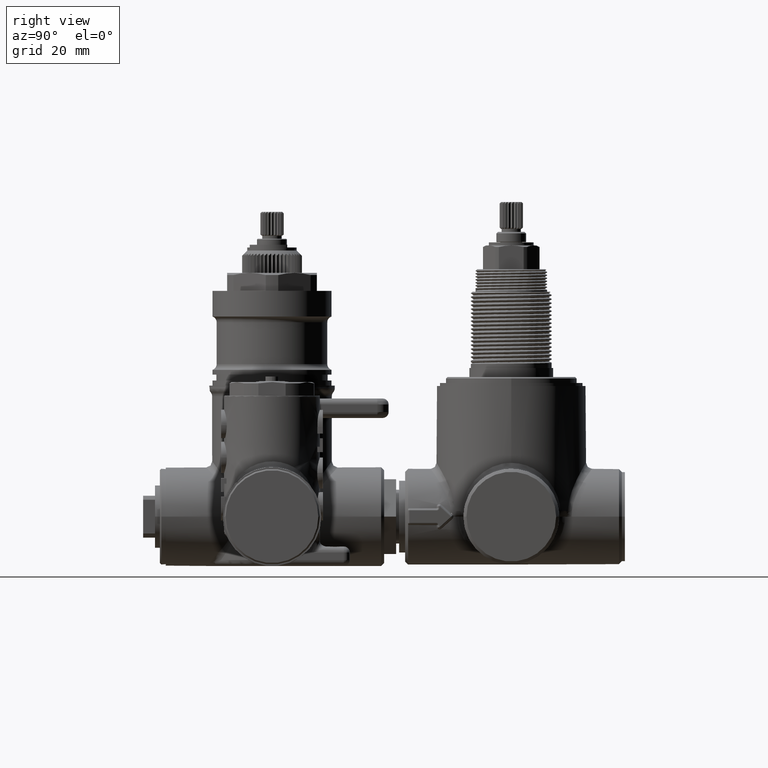
[diagram: clean part render]
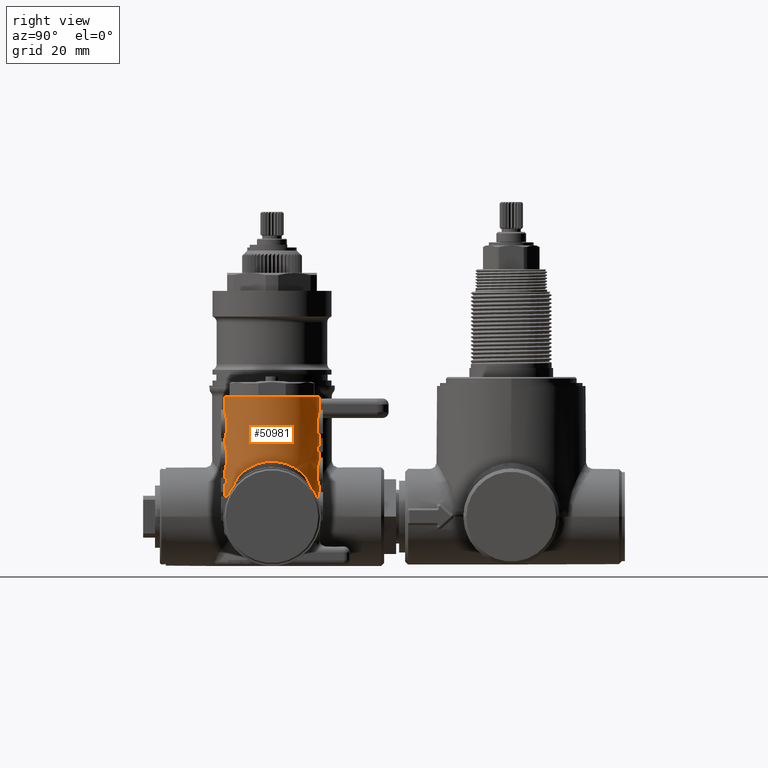
[diagram: same view with one face highlighted and labeled with its STEP entity id]
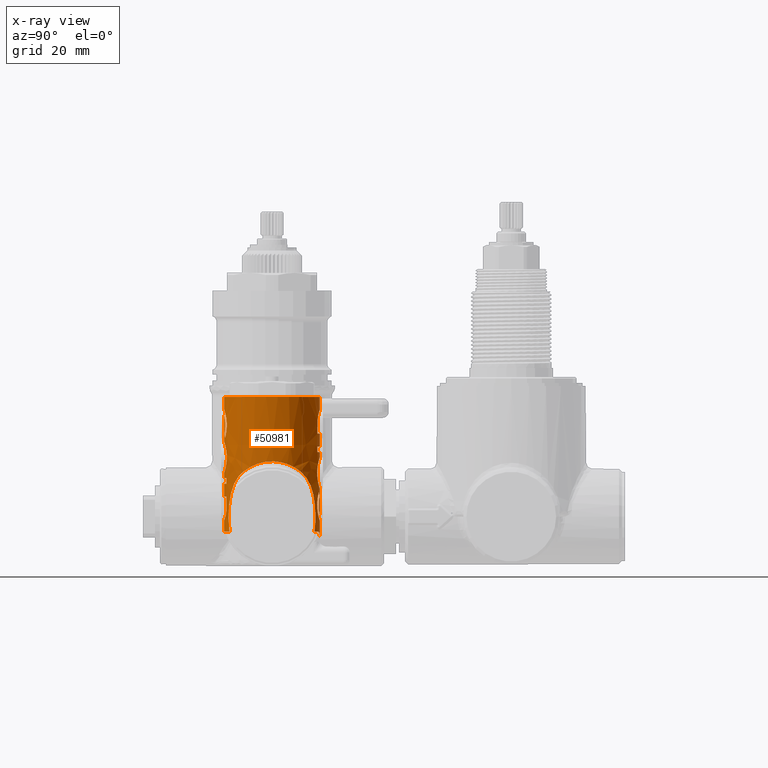
[diagram: x-ray of the same camera — body ghosted, the highlighted face saturated]
A machine part, right view. The second image highlights one B-rep face of the part: STEP entity #50981.
The next image is the same camera in x-ray: the body ghosted, the highlighted face saturated — about 0% of this face is hidden behind the body in this view.
In plain terms, the highlighted face is a freeform B-spline surface patch.
Its self-contained STEP definition (entity closure, byte-faithful):
#124=CARTESIAN_POINT('',(1.496062992115E0,0.E0,-7.755868500833E-1));
#125=DIRECTION('',(1.122966409733E-9,0.E0,1.E0));
#126=DIRECTION('',(-2.815384036963E-12,-1.E0,0.E0));
#127=AXIS2_PLACEMENT_3D('',#124,#125,#126);
#248=CARTESIAN_POINT('',(1.496536184979E0,-6.299252486550E-1,
-9.425488050412E-1));
#249=CARTESIAN_POINT('',(1.496378455090E0,-6.299253672130E-1,
-8.868948200745E-1));
#250=CARTESIAN_POINT('',(1.496220722035E0,-6.299212600569E-1,
-8.312408352190E-1));
#251=CARTESIAN_POINT('',(1.496062992122E0,-6.299212596951E-1,
-7.755868502522E-1));
#287=CARTESIAN_POINT('',(1.496654728864E0,-6.299209337342E-1,
-1.013222902220E0));
#306=CARTESIAN_POINT('',(1.496141858465E0,-6.299212523653E-1,
-1.366544006693E0));
#307=CARTESIAN_POINT('',(1.496312815295E0,-6.299212312757E-1,
-1.248770305202E0));
#308=CARTESIAN_POINT('',(1.496483772083E0,-6.299210945269E-1,
-1.130996603711E0));
#309=CARTESIAN_POINT('',(1.496654728864E0,-6.299209337342E-1,
-1.013222902220E0));
#348=DIRECTION('',(1.457593277447E-9,-2.428222788809E-10,1.E0));
#349=VECTOR('',#348,7.069295452072E-2);
#350=CARTESIAN_POINT('',(1.496062992126E0,-6.299212596787E-1,
-1.846049196194E0));
#351=LINE('',#350,#349);
#360=DIRECTION('',(1.792393919276E-11,0.E0,1.E0));
#361=VECTOR('',#360,1.716131637664E-1);
#362=CARTESIAN_POINT('',(1.496062992126E0,-6.299212596787E-1,
-2.088326604121E0));
#363=LINE('',#362,#361);
#399=DIRECTION('',(0.E0,3.020025103661E-10,1.E0));
#400=VECTOR('',#399,1.460508305873E-1);
#401=CARTESIAN_POINT('',(1.496062992126E0,-6.299212597354E-1,
-2.547240393579E0));
#402=LINE('',#401,#400);
#2167=CARTESIAN_POINT('',(1.496379022530E0,6.299211210460E-1,
-2.403892911629E0));
#2168=CARTESIAN_POINT('',(1.496315781152E0,6.299212062725E-1,
-2.447468477150E0));
#2169=CARTESIAN_POINT('',(1.496153148879E0,6.299214190066E-1,
-2.534625266220E0));
#2170=CARTESIAN_POINT('',(1.496131335807E0,6.299213493778E-1,
-2.621769904243E0));
#2171=CARTESIAN_POINT('',(1.496063003739E0,6.299212598425E-1,
-2.665350629921E0));
#2221=CARTESIAN_POINT('',(1.496141858336E0,6.299212512062E-1,
-1.979905284181E0));
#2222=CARTESIAN_POINT('',(1.496152220905E0,6.299212836966E-1,
-2.002032401954E0));
#2223=CARTESIAN_POINT('',(1.496180746142E0,6.299213790864E-1,
-2.055747987352E0));
#2224=CARTESIAN_POINT('',(1.496248044235E0,6.299216647676E-1,
-2.151326696323E0));
#2225=CARTESIAN_POINT('',(1.496477860617E0,6.299210349899E-1,
-2.246929707341E0));
#2226=CARTESIAN_POINT('',(1.496471676653E0,6.299210374595E-1,
-2.310990468172E0));
#2227=CARTESIAN_POINT('',(1.496457323729E0,6.299210437473E-1,
-2.333224107268E0));
#2267=DIRECTION('',(3.890404979320E-9,-1.465362061740E-7,-1.E0));
#2268=VECTOR('',#2267,7.069295538061E-2);
#2269=CARTESIAN_POINT('',(1.496062991954E0,6.299212598299E-1,
-1.500400094284E0));
#2270=LINE('',#2269,#2268);
#2285=DIRECTION('',(1.021434228960E-9,2.617308844549E-8,-1.E0));
#2286=VECTOR('',#2285,1.716131632129E-1);
#2287=CARTESIAN_POINT('',(1.496062991954E0,6.299212598299E-1,
-1.258122687771E0));
#2288=LINE('',#2287,#2286);
#2324=DIRECTION('',(-4.625940190867E-10,1.518490792264E-7,-1.E0));
#2325=VECTOR('',#2324,1.696728794105E-1);
#2326=CARTESIAN_POINT('',(1.496062991945E0,6.299212598463E-1,
-7.755868502457E-1));
#2327=LINE('',#2326,#2325);
#2393=CARTESIAN_POINT('',(1.501741103879E0,6.298956259490E-1,
-2.665480023141E0));
#2394=CARTESIAN_POINT('',(1.499855531213E0,6.299126194456E-1,
-2.665393926218E0));
#2395=CARTESIAN_POINT('',(1.497962036514E0,6.299212598075E-1,
-2.665350630138E0));
#2396=CARTESIAN_POINT('',(1.496063003739E0,6.299212598425E-1,
-2.665350629921E0));
#2398=CARTESIAN_POINT('',(1.676040260386E0,6.036621093074E-1,
-2.547240394746E0));
#2399=CARTESIAN_POINT('',(1.664551175090E0,6.070875932166E-1,
-2.547266986935E0));
#2400=CARTESIAN_POINT('',(1.647435811537E0,6.116559262461E-1,
-2.548656778749E0));
#2401=CARTESIAN_POINT('',(1.627723397386E0,6.160539148465E-1,
-2.552801696931E0));
#2402=CARTESIAN_POINT('',(1.616505049049E0,6.183179711261E-1,
-2.555959108717E0));
#2403=CARTESIAN_POINT('',(1.600014774674E0,6.214149672050E-1,
-2.561449197828E0));
#2404=CARTESIAN_POINT('',(1.584446997316E0,6.237931552289E-1,
-2.568573976285E0));
#2405=CARTESIAN_POINT('',(1.569849246313E0,6.255988535428E-1,
-2.577426098613E0));
#2406=CARTESIAN_POINT('',(1.560388755877E0,6.266588417450E-1,
-2.583842196560E0));
#2407=CARTESIAN_POINT('',(1.544918156605E0,6.281267092723E-1,
-2.595928780776E0));
#2408=CARTESIAN_POINT('',(1.531673296422E0,6.289584919524E-1,
-2.609897232776E0));
#2409=CARTESIAN_POINT('',(1.521994411926E0,6.293930745100E-1,
-2.623178408983E0));
#2410=CARTESIAN_POINT('',(1.517556629440E0,6.295591021384E-1,
-2.629938083214E0));
#2411=CARTESIAN_POINT('',(1.513523876106E0,6.296830422729E-1,
-2.636865226110E0));
#2412=CARTESIAN_POINT('',(1.509891515226E0,6.297723987206E-1,
-2.643948727340E0));
#2413=CARTESIAN_POINT('',(1.506671846879E0,6.298341033911E-1,
-2.651190289692E0));
#2414=CARTESIAN_POINT('',(1.503948813809E0,6.298733908427E-1,
-2.658365352992E0));
#2415=CARTESIAN_POINT('',(1.502412314048E0,6.298895428126E-1,
-2.663176421258E0));
#2416=CARTESIAN_POINT('',(1.501741103879E0,6.298956259490E-1,
-2.665480023141E0));
#2418=CARTESIAN_POINT('',(2.003499229644E0,3.732408614644E-1,
-1.755263369798E0));
#2419=CARTESIAN_POINT('',(1.994564209346E0,3.853883876572E-1,
-1.764905499385E0));
#2420=CARTESIAN_POINT('',(1.976377517820E0,4.082914790843E-1,
-1.785274651583E0));
#2421=CARTESIAN_POINT('',(1.939328145235E0,4.489794906215E-1,
-1.830495919456E0));
#2422=CARTESIAN_POINT('',(1.909125534982E0,4.762234148080E-1,
-1.872883303842E0));
#2423=CARTESIAN_POINT('',(1.886644432258E0,4.942380529747E-1,
-1.909273648230E0));
#2424=CARTESIAN_POINT('',(1.877790898300E0,5.011372852311E-1,
-1.924074371485E0));
#2425=CARTESIAN_POINT('',(1.862727581211E0,5.123976780621E-1,
-1.950537590246E0));
#2426=CARTESIAN_POINT('',(1.842524320707E0,5.263250698489E-1,
-1.989994410380E0));
#2427=CARTESIAN_POINT('',(1.824364566214E0,5.377047835527E-1,
-2.031681209224E0));
#2428=CARTESIAN_POINT('',(1.812875073451E0,5.444758124814E-1,
-2.062059365359E0));
#2429=CARTESIAN_POINT('',(1.806677666594E0,5.480223282306E-1,
-2.079774660990E0));
#2430=CARTESIAN_POINT('',(1.797777313947E0,5.530175405673E-1,
-2.106660554207E0));
#2431=CARTESIAN_POINT('',(1.786136484369E0,5.592282053714E-1,
-2.147524833079E0));
#2432=CARTESIAN_POINT('',(1.774274617760E0,5.651896782888E-1,
-2.203265689414E0));
#2433=CARTESIAN_POINT('',(1.767517555276E0,5.684374585018E-1,
-2.250712485582E0));
#2434=CARTESIAN_POINT('',(1.764479360900E0,5.698722879335E-1,
-2.284468834171E0));
#2435=CARTESIAN_POINT('',(1.763239088267E0,5.704542082307E-1,
-2.303899874140E0));
#2436=CARTESIAN_POINT('',(1.761888539011E0,5.710853616408E-1,
-2.332957488985E0));
#2437=CARTESIAN_POINT('',(1.761743487598E0,5.711522046878E-1,
-2.376367535550E0));
#2438=CARTESIAN_POINT('',(1.765476860007E0,5.694110802300E-1,
-2.433834791266E0));
#2439=CARTESIAN_POINT('',(1.771209972893E0,5.666678977612E-1,
-2.476641955802E0));
#2440=CARTESIAN_POINT('',(1.776264045583E0,5.641729174040E-1,
-2.505038649948E0));
#2441=CARTESIAN_POINT('',(1.779970127352E0,5.623216708113E-1,
-2.523961500024E0));
#2442=CARTESIAN_POINT('',(1.783096491219E0,5.607299869599E-1,
-2.537985069190E0));
#2443=CARTESIAN_POINT('',(1.785325757398E0,5.595776111632E-1,
-2.547240380066E0));
#2445=CARTESIAN_POINT('',(2.003499232035E0,-3.732408582137E-1,
-1.755263367218E0));
#2446=CARTESIAN_POINT('',(2.012602520775E0,-3.608645641979E-1,
-1.745439652493E0));
#2447=CARTESIAN_POINT('',(2.030015415152E0,-3.352982447277E-1,
-1.726607389512E0));
#2448=CARTESIAN_POINT('',(2.053650884783E0,-2.943757590460E-1,
-1.700958088243E0));
#2449=CARTESIAN_POINT('',(2.071142924733E0,-2.579862633792E-1,
-1.681925016509E0));
#2450=CARTESIAN_POINT('',(2.082133193651E0,-2.311817280821E-1,
-1.669948194182E0));
#2451=CARTESIAN_POINT('',(2.088025201548E0,-2.154861841928E-1,
-1.663522866072E0));
#2452=CARTESIAN_POINT('',(2.096386533085E0,-1.917832759197E-1,
-1.654400711513E0));
#2453=CARTESIAN_POINT('',(2.107200245435E0,-1.554722916101E-1,
-1.642590178178E0));
#2454=CARTESIAN_POINT('',(2.117812506392E0,-1.054227905734E-1,
-1.630986307984E0));
#2455=CARTESIAN_POINT('',(2.122778059418E0,-6.662842014870E-2,
-1.625552657856E0));
#2456=CARTESIAN_POINT('',(2.124750768621E0,-4.014079221276E-2,
-1.623393648581E0));
#2457=CARTESIAN_POINT('',(2.125689624318E0,-2.251516864265E-2,
-1.622366049705E0));
#2458=CARTESIAN_POINT('',(2.126357222770E0,8.212314182268E-3,
-1.621635269549E0));
#2459=CARTESIAN_POINT('',(2.124573399199E0,5.180011877172E-2,
-1.623587988330E0));
#2460=CARTESIAN_POINT('',(2.119747839985E0,9.064653052593E-2,
-1.628868613751E0));
#2461=CARTESIAN_POINT('',(2.115181158112E0,1.164072302412E-1,
-1.633863150980E0));
#2462=CARTESIAN_POINT('',(2.111783053279E0,1.334979657597E-1,
-1.637578816985E0));
#2463=CARTESIAN_POINT('',(2.104995112594E0,1.628348181209E-1,
-1.644998542292E0));
#2464=CARTESIAN_POINT('',(2.092963805962E0,2.033446345473E-1,
-1.658139038631E0));
#2465=CARTESIAN_POINT('',(2.078027196588E0,2.420641015641E-1,
-1.674426753232E0));
#2466=CARTESIAN_POINT('',(2.064396497390E0,2.720254918500E-1,
-1.689265856063E0));
#2467=CARTESIAN_POINT('',(2.049873062379E0,3.009099909580E-1,
-1.705057718895E0));
#2468=CARTESIAN_POINT('',(2.030076134182E0,3.352105729389E-1,
-1.726541729177E0));
#2469=CARTESIAN_POINT('',(2.012615948E0,3.608463095685E-1,-1.745425162655E0));
#2470=CARTESIAN_POINT('',(2.003499229644E0,3.732408614644E-1,
-1.755263369798E0));
#2472=CARTESIAN_POINT('',(1.785325759954E0,-5.595776098435E-1,
-2.547240389640E0));
#2473=CARTESIAN_POINT('',(1.783096493775E0,-5.607299856401E-1,
-2.537985078764E0));
#2474=CARTESIAN_POINT('',(1.779970126779E0,-5.623216711074E-1,
-2.523961497875E0));
#2475=CARTESIAN_POINT('',(1.776264045687E0,-5.641729173503E-1,
-2.505038650337E0));
#2476=CARTESIAN_POINT('',(1.771209972766E0,-5.666678978269E-1,
-2.476641955326E0));
#2477=CARTESIAN_POINT('',(1.765476860058E0,-5.694110802041E-1,
-2.433834791453E0));
#2478=CARTESIAN_POINT('',(1.761743487584E0,-5.711522046950E-1,
-2.376367535498E0));
#2479=CARTESIAN_POINT('',(1.761888539011E0,-5.710853616404E-1,
-2.332957488988E0));
#2480=CARTESIAN_POINT('',(1.763239088267E0,-5.704542082307E-1,
-2.303899874139E0));
#2481=CARTESIAN_POINT('',(1.764479360900E0,-5.698722879335E-1,
-2.284468834171E0));
#2482=CARTESIAN_POINT('',(1.767517555276E0,-5.684374585018E-1,
-2.250712485582E0));
#2483=CARTESIAN_POINT('',(1.774274617760E0,-5.651896782888E-1,
-2.203265689414E0));
#2484=CARTESIAN_POINT('',(1.786136484369E0,-5.592282053714E-1,
-2.147524833079E0));
#2485=CARTESIAN_POINT('',(1.797777313947E0,-5.530175405673E-1,
-2.106660554207E0));
#2486=CARTESIAN_POINT('',(1.806677666594E0,-5.480223282306E-1,
-2.079774660990E0));
#2487=CARTESIAN_POINT('',(1.812875073451E0,-5.444758124814E-1,
-2.062059365359E0));
#2488=CARTESIAN_POINT('',(1.824364566214E0,-5.377047835526E-1,
-2.031681209224E0));
#2489=CARTESIAN_POINT('',(1.842524320707E0,-5.263250698492E-1,
-1.989994410380E0));
#2490=CARTESIAN_POINT('',(1.862727581212E0,-5.123976780612E-1,
-1.950537590245E0));
#2491=CARTESIAN_POINT('',(1.877790898299E0,-5.011372852324E-1,
-1.924074371486E0));
#2492=CARTESIAN_POINT('',(1.886644432260E0,-4.942380529726E-1,
-1.909273648228E0));
#2493=CARTESIAN_POINT('',(1.909125534959E0,-4.762234148402E-1,
-1.872883303868E0));
#2494=CARTESIAN_POINT('',(1.939328145881E0,-4.489794897435E-1,
-1.830495918759E0));
#2495=CARTESIAN_POINT('',(1.976377516734E0,-4.082914805602E-1,
-1.785274652755E0));
#2496=CARTESIAN_POINT('',(1.994564211738E0,-3.853883844065E-1,
-1.764905496805E0));
#2497=CARTESIAN_POINT('',(2.003499232035E0,-3.732408582137E-1,
-1.755263367218E0));
#2499=CARTESIAN_POINT('',(1.692913156371E0,-5.983726943212E-1,
-2.177366706024E0));
#2500=CARTESIAN_POINT('',(1.692878098890E0,-5.983842259923E-1,
-2.187453891520E0));
#2501=CARTESIAN_POINT('',(1.692433677911E0,-5.985284942779E-1,
-2.206634137727E0));
#2502=CARTESIAN_POINT('',(1.690385678071E0,-5.991987190484E-1,
-2.232309084816E0));
#2503=CARTESIAN_POINT('',(1.687304314E0,-6.001913378641E-1,-2.255226386929E0));
#2504=CARTESIAN_POINT('',(1.682907310810E0,-6.015774577961E-1,
-2.274996325933E0));
#2505=CARTESIAN_POINT('',(1.677541640100E0,-6.032217362229E-1,
-2.292027317041E0));
#2506=CARTESIAN_POINT('',(1.670627917575E0,-6.052653365778E-1,
-2.307322430244E0));
#2507=CARTESIAN_POINT('',(1.662080494776E0,-6.076744678400E-1,
-2.321534922839E0));
#2508=CARTESIAN_POINT('',(1.651481841732E0,-6.104859334275E-1,
-2.335126379802E0));
#2509=CARTESIAN_POINT('',(1.638166824664E0,-6.137461125886E-1,
-2.348877940140E0));
#2510=CARTESIAN_POINT('',(1.621503152432E0,-6.173995539579E-1,
-2.362161839460E0));
#2511=CARTESIAN_POINT('',(1.602463565618E0,-6.209680699077E-1,
-2.374337154323E0));
#2512=CARTESIAN_POINT('',(1.583848587619E0,-6.238729023988E-1,
-2.383532944344E0));
#2513=CARTESIAN_POINT('',(1.563442884604E0,-6.264281636425E-1,
-2.391116591754E0));
#2514=CARTESIAN_POINT('',(1.541497759302E0,-6.284085765853E-1,
-2.396643613136E0));
#2515=CARTESIAN_POINT('',(1.519292221757E0,-6.296270587877E-1,
-2.400168701831E0));
#2516=CARTESIAN_POINT('',(1.503877132032E0,-6.299212596913E-1,
-2.400982087771E0));
#2517=CARTESIAN_POINT('',(1.496062992126E0,-6.299212596913E-1,
-2.401189562992E0));
#2519=CARTESIAN_POINT('',(1.692913156373E0,-5.983726943103E-1,
-2.088326604094E0));
#2520=CARTESIAN_POINT('',(1.692913156586E0,-5.983726942402E-1,
-2.098436880936E0));
#2521=CARTESIAN_POINT('',(1.692937347736E0,-5.983626755253E-1,
-2.118512742098E0));
#2522=CARTESIAN_POINT('',(1.692971155231E0,-5.983515514602E-1,
-2.148187339522E0));
#2523=CARTESIAN_POINT('',(1.692946986753E0,-5.983615662874E-1,
-2.167687933721E0));
#2524=CARTESIAN_POINT('',(1.692913156371E0,-5.983726943212E-1,
-2.177366706024E0));
#2526=DIRECTION('',(-2.183548389563E-11,-7.183179764775E-12,-1.E0));
#2527=VECTOR('',#2526,7.066424389764E-2);
#2528=CARTESIAN_POINT('',(1.692913156373E0,-5.983726943155E-1,
-1.846049196457E0));
#2529=LINE('',#2528,#2527);
#2530=CARTESIAN_POINT('',(1.703008090231E0,-5.949569737199E-1,
-1.571752053307E0));
#2531=CARTESIAN_POINT('',(1.702952397013E0,-5.949763422004E-1,
-1.580722250259E0));
#2532=CARTESIAN_POINT('',(1.701959912251E0,-5.953210256159E-1,
-1.597731909389E0));
#2533=CARTESIAN_POINT('',(1.697822990242E0,-5.967420916237E-1,
-1.620040340579E0));
#2534=CARTESIAN_POINT('',(1.691719952850E0,-5.987772704909E-1,
-1.640389974912E0));
#2535=CARTESIAN_POINT('',(1.683598329626E0,-6.013816644796E-1,
-1.659523578802E0));
#2536=CARTESIAN_POINT('',(1.673003602273E0,-6.045982363377E-1,
-1.678109294304E0));
#2537=CARTESIAN_POINT('',(1.660154501548E0,-6.082294113689E-1,
-1.696081367141E0));
#2538=CARTESIAN_POINT('',(1.644884100252E0,-6.121640323472E-1,
-1.713089984037E0));
#2539=CARTESIAN_POINT('',(1.627818442679E0,-6.160782644855E-1,
-1.728922841024E0));
#2540=CARTESIAN_POINT('',(1.609193790852E0,-6.197833352603E-1,
-1.742730406051E0));
#2541=CARTESIAN_POINT('',(1.589275355174E0,-6.230977661869E-1,
-1.754251984025E0));
#2542=CARTESIAN_POINT('',(1.568592752319E0,-6.258511154448E-1,
-1.763208652996E0));
#2543=CARTESIAN_POINT('',(1.546608663904E0,-6.280250192766E-1,
-1.769706217837E0));
#2544=CARTESIAN_POINT('',(1.522903490154E0,-6.295136056274E-1,
-1.774166970763E0));
#2545=CARTESIAN_POINT('',(1.505269361894E0,-6.299212596943E-1,
-1.775125639344E0));
#2546=CARTESIAN_POINT('',(1.496062992229E0,-6.299212596958E-1,
-1.775356241674E0));
#2548=CARTESIAN_POINT('',(1.575086981825E0,-6.249441036598E-1,
-1.264252179488E0));
#2549=CARTESIAN_POINT('',(1.580530767590E0,-6.242559662301E-1,
-1.259135031152E0));
#2550=CARTESIAN_POINT('',(1.590661890740E0,-6.228267905639E-1,
-1.249034215134E0));
#2551=CARTESIAN_POINT('',(1.602944116363E0,-6.208212551801E-1,
-1.233904536213E0));
#2552=CARTESIAN_POINT('',(1.613006621093E0,-6.189919480717E-1,
-1.218497695650E0));
#2553=CARTESIAN_POINT('',(1.620430432335E0,-6.175333683444E-1,
-1.204159986682E0));
#2554=CARTESIAN_POINT('',(1.626022739565E0,-6.163754915406E-1,
-1.189383857601E0));
#2555=CARTESIAN_POINT('',(1.629847399528E0,-6.155527384533E-1,
-1.174799503508E0));
#2556=CARTESIAN_POINT('',(1.632041266994E0,-6.150695698019E-1,
-1.160384955720E0));
#2557=CARTESIAN_POINT('',(1.632341093540E0,-6.150031795048E-1,
-1.150379975721E0));
#2558=CARTESIAN_POINT('',(1.632343962193E0,-6.150025436802E-1,
-1.145320147288E0));
#2560=CARTESIAN_POINT('',(1.624615155651E0,-6.166645056155E-1,
-1.316067415449E0));
#2561=CARTESIAN_POINT('',(1.619182860924E0,-6.177970892833E-1,
-1.310384266350E0));
#2562=CARTESIAN_POINT('',(1.608271032946E0,-6.199220105739E-1,
-1.298968525529E0));
#2563=CARTESIAN_POINT('',(1.591751747068E0,-6.226844947320E-1,
-1.281686366266E0));
#2564=CARTESIAN_POINT('',(1.580656714543E0,-6.242400455425E-1,
-1.270079113236E0));
#2565=CARTESIAN_POINT('',(1.575086981825E0,-6.249441036598E-1,
-1.264252179488E0));
#2567=CARTESIAN_POINT('',(1.703008090231E0,-5.949569737199E-1,
-1.148082055315E0));
#2568=CARTESIAN_POINT('',(1.702946946835E0,-5.949782376140E-1,
-1.156311929392E0));
#2569=CARTESIAN_POINT('',(1.702036538933E0,-5.952942286125E-1,
-1.172581018055E0));
#2570=CARTESIAN_POINT('',(1.697882455208E0,-5.967228095534E-1,
-1.196561303010E0));
#2571=CARTESIAN_POINT('',(1.691151747993E0,-5.989668017138E-1,
-1.219665785715E0));
#2572=CARTESIAN_POINT('',(1.682086155669E0,-6.018556264327E-1,
-1.241729326877E0));
#2573=CARTESIAN_POINT('',(1.670923962707E0,-6.052067985192E-1,
-1.262615632725E0));
#2574=CARTESIAN_POINT('',(1.657611691245E0,-6.089116997117E-1,
-1.282060205309E0));
#2575=CARTESIAN_POINT('',(1.642268958011E0,-6.127950952833E-1,
-1.300079212144E0));
#2576=CARTESIAN_POINT('',(1.630682868222E0,-6.153994431505E-1,
-1.310869770139E0));
#2577=CARTESIAN_POINT('',(1.624615155651E0,-6.166645056155E-1,
-1.316067415449E0));
#2579=CARTESIAN_POINT('',(1.496536184979E0,-6.299252486550E-1,
-9.425488050412E-1));
#2580=CARTESIAN_POINT('',(1.503430763061E0,-6.299200530536E-1,
-9.424651270442E-1));
#2581=CARTESIAN_POINT('',(1.517326216754E0,-6.296777032817E-1,
-9.430943186816E-1));
#2582=CARTESIAN_POINT('',(1.538619238788E0,-6.286016522472E-1,
-9.457920458097E-1));
#2583=CARTESIAN_POINT('',(1.559859713940E0,-6.267998933013E-1,
-9.507029521906E-1));
#2584=CARTESIAN_POINT('',(1.580872753299E0,-6.243013223928E-1,
-9.580708242748E-1));
#2585=CARTESIAN_POINT('',(1.601162345209E0,-6.211977909593E-1,
-9.678496511827E-1));
#2586=CARTESIAN_POINT('',(1.620012547426E0,-6.176973270789E-1,
-9.804512157395E-1));
#2587=CARTESIAN_POINT('',(1.636972450921E0,-6.140283910462E-1,
-9.940631100257E-1));
#2588=CARTESIAN_POINT('',(1.651571514905E0,-6.104787146955E-1,
-1.009523930959E0));
#2589=CARTESIAN_POINT('',(1.664979016061E0,-6.068967495435E-1,
-1.026526547360E0));
#2590=CARTESIAN_POINT('',(1.676918454721E0,-6.034350638008E-1,
-1.045883679627E0));
#2591=CARTESIAN_POINT('',(1.687200335873E0,-6.002466056850E-1,
-1.066890176041E0));
#2592=CARTESIAN_POINT('',(1.695277718931E0,-5.976010573777E-1,
-1.089441461510E0));
#2593=CARTESIAN_POINT('',(1.700222775017E0,-5.959207844481E-1,
-1.111735555478E0));
#2594=CARTESIAN_POINT('',(1.702662943447E0,-5.950756219783E-1,
-1.132236777321E0));
#2595=CARTESIAN_POINT('',(1.703044897781E0,-5.949441731250E-1,
-1.143169378150E0));
#2596=CARTESIAN_POINT('',(1.703008090231E0,-5.949569737199E-1,
-1.148082055315E0));
#2598=CARTESIAN_POINT('',(1.692913156371E0,5.983726943212E-1,
-1.169082585315E0));
#2599=CARTESIAN_POINT('',(1.692878174176E0,5.983842012283E-1,
-1.159019161575E0));
#2600=CARTESIAN_POINT('',(1.692434611117E0,5.985281823300E-1,
-1.139884170575E0));
#2601=CARTESIAN_POINT('',(1.690398747219E0,5.991944590956E-1,
-1.114275214597E0));
#2602=CARTESIAN_POINT('',(1.687332026604E0,6.001824733927E-1,
-1.091407226260E0));
#2603=CARTESIAN_POINT('',(1.682961259844E0,6.015605712636E-1,
-1.071682679372E0));
#2604=CARTESIAN_POINT('',(1.677654090883E0,6.031876773961E-1,
-1.054720897903E0));
#2605=CARTESIAN_POINT('',(1.670788541213E0,6.052188182847E-1,
-1.039436174733E0));
#2606=CARTESIAN_POINT('',(1.662257483581E0,6.076261143560E-1,
-1.025172576738E0));
#2607=CARTESIAN_POINT('',(1.651649241526E0,6.104432438123E-1,
-1.011514611141E0));
#2608=CARTESIAN_POINT('',(1.638380076033E0,6.136959981825E-1,
-9.977636456059E-1));
#2609=CARTESIAN_POINT('',(1.621784386174E0,6.173422200524E-1,
-9.844949743936E-1));
#2610=CARTESIAN_POINT('',(1.602687954554E0,6.209306764666E-1,
-9.722320438909E-1));
#2611=CARTESIAN_POINT('',(1.583970128667E0,6.238566535237E-1,
-9.629664302772E-1));
#2612=CARTESIAN_POINT('',(1.563495499102E0,6.264234852100E-1,
-9.553442520273E-1));
#2613=CARTESIAN_POINT('',(1.541472693762E0,6.284106371274E-1,
-9.498001571441E-1));
#2614=CARTESIAN_POINT('',(1.519298819762E0,6.296264621467E-1,
-9.462820711147E-1));
#2615=CARTESIAN_POINT('',(1.503878244008E0,6.299212856142E-1,
-9.454672425706E-1));
#2616=CARTESIAN_POINT('',(1.496062991867E0,6.299212856110E-1,
-9.452597296562E-1));
#2618=CARTESIAN_POINT('',(1.692913156373E0,5.983726943103E-1,
-1.258122687244E0));
#2619=CARTESIAN_POINT('',(1.692913156586E0,5.983726942402E-1,
-1.248012410401E0));
#2620=CARTESIAN_POINT('',(1.692937347684E0,5.983626755427E-1,
-1.227936549238E0));
#2621=CARTESIAN_POINT('',(1.692971155193E0,5.983515514726E-1,
-1.198261951821E0));
#2622=CARTESIAN_POINT('',(1.692946986753E0,5.983615662874E-1,
-1.178761357620E0));
#2623=CARTESIAN_POINT('',(1.692913156371E0,5.983726943212E-1,
-1.169082585315E0));
#2625=DIRECTION('',(-2.183862614400E-11,7.181608640592E-12,1.E0));
#2626=VECTOR('',#2625,7.066424389764E-2);
#2627=CARTESIAN_POINT('',(1.692913156373E0,5.983726943155E-1,
-1.500400094882E0));
#2628=LINE('',#2627,#2626);
#2629=CARTESIAN_POINT('',(1.703008090231E0,5.949569737199E-1,
-1.774697238031E0));
#2630=CARTESIAN_POINT('',(1.702952397011E0,5.949763422012E-1,
-1.765727040730E0));
#2631=CARTESIAN_POINT('',(1.701959912243E0,5.953210256201E-1,
-1.748717380512E0));
#2632=CARTESIAN_POINT('',(1.697822989231E0,5.967420919671E-1,-1.726408946E0));
#2633=CARTESIAN_POINT('',(1.691719950994E0,5.987772711064E-1,
-1.706059308267E0));
#2634=CARTESIAN_POINT('',(1.683598324785E0,6.013816660046E-1,
-1.686925703666E0));
#2635=CARTESIAN_POINT('',(1.673003596586E0,6.045982379936E-1,
-1.668339990359E0));
#2636=CARTESIAN_POINT('',(1.660154499174E0,6.082294119708E-1,
-1.650367922295E0));
#2637=CARTESIAN_POINT('',(1.644884103820E0,6.121640314096E-1,
-1.633359313681E0));
#2638=CARTESIAN_POINT('',(1.627818454727E0,6.160782618225E-1,
-1.617526463643E0));
#2639=CARTESIAN_POINT('',(1.609193809077E0,6.197833319086E-1,
-1.603718900751E0));
#2640=CARTESIAN_POINT('',(1.589275376871E0,6.230977628291E-1,
-1.592197321573E0));
#2641=CARTESIAN_POINT('',(1.568592774616E0,6.258511132133E-1,
-1.583240649515E0));
#2642=CARTESIAN_POINT('',(1.546608683429E0,6.280250164934E-1,
-1.576743080445E0));
#2643=CARTESIAN_POINT('',(1.522903502336E0,6.295136099774E-1,
-1.572282324011E0));
#2644=CARTESIAN_POINT('',(1.505269366437E0,6.299212494693E-1,
-1.571323652178E0));
#2645=CARTESIAN_POINT('',(1.496062992229E0,6.299212494708E-1,
-1.571093049665E0));
#2647=CARTESIAN_POINT('',(1.632344006098E0,6.150025339688E-1,
-2.201127558031E0));
#2648=CARTESIAN_POINT('',(1.632347948531E0,6.150016601454E-1,
-2.207387387161E0));
#2649=CARTESIAN_POINT('',(1.631664802286E0,6.151533406125E-1,
-2.219294684878E0));
#2650=CARTESIAN_POINT('',(1.628708148732E0,6.158007663421E-1,
-2.235045329014E0));
#2651=CARTESIAN_POINT('',(1.624160926651E0,6.167671089742E-1,
-2.249506221529E0));
#2652=CARTESIAN_POINT('',(1.617824860867E0,6.180557417459E-1,
-2.263249167728E0));
#2653=CARTESIAN_POINT('',(1.609469760636E0,6.196538904293E-1,
-2.276812877721E0));
#2654=CARTESIAN_POINT('',(1.598837562145E0,6.215154998162E-1,
-2.289723320315E0));
#2655=CARTESIAN_POINT('',(1.586917254365E0,6.233761376153E-1,
-2.301321042205E0));
#2656=CARTESIAN_POINT('',(1.573883636433E0,6.251420190894E-1,
-2.311333005123E0));
#2657=CARTESIAN_POINT('',(1.560327124048E0,6.266827198161E-1,
-2.319222394274E0));
#2658=CARTESIAN_POINT('',(1.546336733883E0,6.279644355071E-1,
-2.325297286421E0));
#2659=CARTESIAN_POINT('',(1.531483157481E0,6.289862051232E-1,
-2.329771115573E0));
#2660=CARTESIAN_POINT('',(1.515197352322E0,6.297092346135E-1,
-2.332580556203E0));
#2661=CARTESIAN_POINT('',(1.502913829419E0,6.299169890857E-1,
-2.333187065298E0));
#2662=CARTESIAN_POINT('',(1.496457323729E0,6.299210437473E-1,
-2.333224107268E0));
#2664=CARTESIAN_POINT('',(1.575086981825E0,6.249441036598E-1,
-2.082197111850E0));
#2665=CARTESIAN_POINT('',(1.580529666756E0,6.242561053842E-1,
-2.087313227414E0));
#2666=CARTESIAN_POINT('',(1.590658954101E0,6.228272203496E-1,
-2.097412050933E0));
#2667=CARTESIAN_POINT('',(1.602939511072E0,6.208220395610E-1,
-2.112538896409E0));
#2668=CARTESIAN_POINT('',(1.613001190718E0,6.189929748756E-1,
-2.127943507927E0));
#2669=CARTESIAN_POINT('',(1.620425817593E0,6.175342988139E-1,
-2.142278786381E0));
#2670=CARTESIAN_POINT('',(1.626017738429E0,6.163765465463E-1,
-2.157051698187E0));
#2671=CARTESIAN_POINT('',(1.629843913740E0,6.155535005828E-1,
-2.171636985439E0));
#2672=CARTESIAN_POINT('',(1.632040221063E0,6.150698025612E-1,
-2.186056189968E0));
#2673=CARTESIAN_POINT('',(1.632341136157E0,6.150031700789E-1,
-2.196065296473E0));
#2674=CARTESIAN_POINT('',(1.632344006098E0,6.150025339688E-1,
-2.201127558031E0));
#2676=CARTESIAN_POINT('',(1.624615135745E0,6.166645034931E-1,
-2.030381875369E0));
#2677=CARTESIAN_POINT('',(1.619182841017E0,6.177970871610E-1,
-2.036065024467E0));
#2678=CARTESIAN_POINT('',(1.608271042236E0,6.199220115644E-1,
-2.047480766053E0));
#2679=CARTESIAN_POINT('',(1.591751744414E0,6.226844944491E-1,
-2.064762925003E0));
#2680=CARTESIAN_POINT('',(1.580656714543E0,6.242400455425E-1,
-2.076370178103E0));
#2681=CARTESIAN_POINT('',(1.575086981825E0,6.249441036598E-1,
-2.082197111850E0));
#2683=CARTESIAN_POINT('',(1.703008090231E0,5.949569737199E-1,
-2.198367236024E0));
#2684=CARTESIAN_POINT('',(1.703036782991E0,5.949469952129E-1,
-2.190637746542E0));
#2685=CARTESIAN_POINT('',(1.702345281548E0,5.951867925221E-1,
-2.175125193515E0));
#2686=CARTESIAN_POINT('',(1.698476310735E0,5.965208812124E-1,
-2.151393913395E0));
#2687=CARTESIAN_POINT('',(1.691867417267E0,5.987331666274E-1,
-2.128093169133E0));
#2688=CARTESIAN_POINT('',(1.682734723939E0,6.016554852385E-1,
-2.105620491102E0));
#2689=CARTESIAN_POINT('',(1.671441875991E0,6.050580614573E-1,
-2.084397981776E0));
#2690=CARTESIAN_POINT('',(1.657951566589E0,6.088230727816E-1,
-2.064683925975E0));
#2691=CARTESIAN_POINT('',(1.642414397262E0,6.127621046491E-1,
-2.046484527811E0));
#2692=CARTESIAN_POINT('',(1.630724745941E0,6.153907057570E-1,
-2.035614964976E0));
#2693=CARTESIAN_POINT('',(1.624615135745E0,6.166645034931E-1,
-2.030381875369E0));
#2695=CARTESIAN_POINT('',(1.496379022530E0,6.299211210460E-1,
-2.403892911629E0));
#2696=CARTESIAN_POINT('',(1.504334977923E0,6.299171168137E-1,
-2.403918480378E0));
#2697=CARTESIAN_POINT('',(1.519887505908E0,6.296054910868E-1,
-2.403341929503E0));
#2698=CARTESIAN_POINT('',(1.542016328681E0,6.283680818451E-1,
-2.400160238808E0));
#2699=CARTESIAN_POINT('',(1.563206380756E0,6.264350457501E-1,
-2.394965253406E0));
#2700=CARTESIAN_POINT('',(1.581749930390E0,6.241556955034E-1,
-2.388255311935E0));
#2701=CARTESIAN_POINT('',(1.600509831589E0,6.212986598567E-1,
-2.379091886767E0));
#2702=CARTESIAN_POINT('',(1.618643614857E0,6.179616185603E-1,
-2.367652729219E0));
#2703=CARTESIAN_POINT('',(1.634576251828E0,6.145664473781E-1,
-2.354966651011E0));
#2704=CARTESIAN_POINT('',(1.648871336098E0,6.111608784749E-1,
-2.340760292442E0));
#2705=CARTESIAN_POINT('',(1.662634222910E0,6.075498983402E-1,
-2.324003969975E0));
#2706=CARTESIAN_POINT('',(1.675401196418E0,6.038922545673E-1,
-2.304319572539E0));
#2707=CARTESIAN_POINT('',(1.685915129280E0,6.006528759180E-1,
-2.283885447378E0));
#2708=CARTESIAN_POINT('',(1.693612246656E0,5.981530164504E-1,
-2.263607598319E0));
#2709=CARTESIAN_POINT('',(1.698917723041E0,5.963684059454E-1,
-2.243648291199E0));
#2710=CARTESIAN_POINT('',(1.702313937729E0,5.951975427127E-1,
-2.222609635453E0));
#2711=CARTESIAN_POINT('',(1.702977632967E0,5.949675658698E-1,
-2.206697523949E0));
#2712=CARTESIAN_POINT('',(1.703008090231E0,5.949569737199E-1,
-2.198367236024E0));
#3179=CARTESIAN_POINT('',(1.496062992104E0,2.163310041194E-11,
-2.547240394377E0));
#3180=DIRECTION('',(2.220564527113E-10,-1.145587522949E-9,-1.E0));
#3181=DIRECTION('',(4.592050755176E-1,-8.883302868972E-1,1.119629622289E-9));
#3182=AXIS2_PLACEMENT_3D('',#3179,#3180,#3181);
#3253=CARTESIAN_POINT('',(1.676040260386E0,6.036621093074E-1,
-2.547240394746E0));
#3254=CARTESIAN_POINT('',(1.690486354268E0,5.993552395084E-1,
-2.547208168777E0));
#3255=CARTESIAN_POINT('',(1.719068852444E0,5.897025599955E-1,
-2.547193109479E0));
#3256=CARTESIAN_POINT('',(1.755364723104E0,5.744675008445E-1,
-2.547228204538E0));
#3257=CARTESIAN_POINT('',(1.777162805540E0,5.637973164583E-1,
-2.547240449545E0));
#3258=CARTESIAN_POINT('',(1.785325757398E0,5.595776111632E-1,
-2.547240380066E0));
#4119=CARTESIAN_POINT('',(1.496062992126E0,-6.299212596787E-1,
-2.088326604121E0));
#4120=CARTESIAN_POINT('',(1.537291242178E0,-6.299212596787E-1,
-2.088326604121E0));
#4121=CARTESIAN_POINT('',(1.604024526980E0,-6.233474010421E-1,
-2.088326604086E0));
#4122=CARTESIAN_POINT('',(1.668683856066E0,-6.063425858998E-1,
-2.088326604094E0));
#4123=CARTESIAN_POINT('',(1.692913156373E0,-5.983726943103E-1,
-2.088326604094E0));
#4263=CARTESIAN_POINT('',(1.692913156371E0,-5.983726943160E-1,
-1.916713440354E0));
#4264=CARTESIAN_POINT('',(1.668683856066E0,-6.063425859048E-1,
-1.916713440354E0));
#4265=CARTESIAN_POINT('',(1.604024526976E0,-6.233474010387E-1,
-1.916713440354E0));
#4266=CARTESIAN_POINT('',(1.537291242181E0,-6.299212596785E-1,
-1.916713440354E0));
#4267=CARTESIAN_POINT('',(1.496062992129E0,-6.299212596787E-1,
-1.916713440354E0));
#4300=CARTESIAN_POINT('',(1.496062992126E0,-6.299212596787E-1,
-1.846049196194E0));
#4301=CARTESIAN_POINT('',(1.537291242178E0,-6.299212596787E-1,
-1.846049196194E0));
#4302=CARTESIAN_POINT('',(1.604024526980E0,-6.233474010379E-1,
-1.846049196538E0));
#4303=CARTESIAN_POINT('',(1.668683856066E0,-6.063425859050E-1,
-1.846049196457E0));
#4304=CARTESIAN_POINT('',(1.692913156373E0,-5.983726943155E-1,
-1.846049196457E0));
#4554=CARTESIAN_POINT('',(1.496141858465E0,-6.299212523653E-1,
-1.366544006693E0));
#4555=CARTESIAN_POINT('',(1.504436333911E0,-6.299202105601E-1,
-1.366541545584E0));
#4556=CARTESIAN_POINT('',(1.520436078656E0,-6.295861532314E-1,
-1.367164674723E0));
#4557=CARTESIAN_POINT('',(1.542114166737E0,-6.283489316817E-1,
-1.370501861436E0));
#4558=CARTESIAN_POINT('',(1.562384559536E0,-6.265223686099E-1,
-1.375831818909E0));
#4559=CARTESIAN_POINT('',(1.581804661364E0,-6.241580064943E-1,
-1.383355548694E0));
#4560=CARTESIAN_POINT('',(1.601034844938E0,-6.212127864584E-1,
-1.393101079203E0));
#4561=CARTESIAN_POINT('',(1.619509837622E0,-6.177942965501E-1,
-1.405087564630E0));
#4562=CARTESIAN_POINT('',(1.636120036009E0,-6.142229102726E-1,
-1.418613980800E0));
#4563=CARTESIAN_POINT('',(1.650896841603E0,-6.106506117876E-1,
-1.433592385113E0));
#4564=CARTESIAN_POINT('',(1.664041443710E0,-6.071539545964E-1,
-1.450027366458E0));
#4565=CARTESIAN_POINT('',(1.675597693282E0,-6.038265182361E-1,
-1.468020927780E0));
#4566=CARTESIAN_POINT('',(1.685373116728E0,-6.008220644008E-1,
-1.486770698216E0));
#4567=CARTESIAN_POINT('',(1.693039993299E0,-5.983428491253E-1,
-1.506204986410E0));
#4568=CARTESIAN_POINT('',(1.698727313784E0,-5.964340206928E-1,
-1.526564718103E0));
#4569=CARTESIAN_POINT('',(1.702289321244E0,-5.952061839958E-1,
-1.548189609323E0));
#4570=CARTESIAN_POINT('',(1.703058655779E0,-5.949393884935E-1,
-1.563752616159E0));
#4571=CARTESIAN_POINT('',(1.703008090231E0,-5.949569737199E-1,
-1.571752053307E0));
#4716=CARTESIAN_POINT('',(1.632343962193E0,-6.150025436802E-1,
-1.145320147288E0));
#4717=CARTESIAN_POINT('',(1.632347124200E0,-6.150018428351E-1,
-1.139512187692E0));
#4718=CARTESIAN_POINT('',(1.631911142780E0,-6.150984960453E-1,
-1.128252303953E0));
#4719=CARTESIAN_POINT('',(1.629373074800E0,-6.156565202679E-1,
-1.113129260381E0));
#4720=CARTESIAN_POINT('',(1.625048430508E0,-6.165813040349E-1,
-1.098475190422E0));
#4721=CARTESIAN_POINT('',(1.619019798665E0,-6.178180632807E-1,
-1.084723285988E0));
#4722=CARTESIAN_POINT('',(1.611055393966E0,-6.193582618694E-1,
-1.071491684228E0));
#4723=CARTESIAN_POINT('',(1.600880367988E0,-6.211759434118E-1,
-1.058533185627E0));
#4724=CARTESIAN_POINT('',(1.588140046021E0,-6.232022148085E-1,
-1.046045117387E0));
#4725=CARTESIAN_POINT('',(1.574747726418E0,-6.250351900205E-1,
-1.035643896526E0));
#4726=CARTESIAN_POINT('',(1.561033653974E0,-6.266105229686E-1,
-1.027660418407E0));
#4727=CARTESIAN_POINT('',(1.546953835778E0,-6.279163572681E-1,
-1.021466801501E0));
#4728=CARTESIAN_POINT('',(1.531757636349E0,-6.289736451260E-1,
-1.016886812867E0));
#4729=CARTESIAN_POINT('',(1.515230613977E0,-6.297092541676E-1,
-1.013906534787E0));
#4730=CARTESIAN_POINT('',(1.502999220922E0,-6.299149549295E-1,
-1.013315214495E0));
#4731=CARTESIAN_POINT('',(1.496654728864E0,-6.299209337342E-1,
-1.013222902220E0));
#5141=CARTESIAN_POINT('',(1.496062991954E0,6.299212598299E-1,
-1.258122687771E0));
#5142=CARTESIAN_POINT('',(1.516677116980E0,6.299212598383E-1,
-1.258122687771E0));
#5143=CARTESIAN_POINT('',(1.557904963800E0,6.278906375652E-1,
-1.258122686999E0));
#5144=CARTESIAN_POINT('',(1.619152913538E0,6.188142800140E-1,
-1.258122687313E0));
#5145=CARTESIAN_POINT('',(1.663942413740E0,6.075851174645E-1,
-1.258122687240E0));
#5146=CARTESIAN_POINT('',(1.688265863684E0,5.999013566506E-1,
-1.258122687244E0));
#5147=CARTESIAN_POINT('',(1.692913156373E0,5.983726943103E-1,
-1.258122687244E0));
#5271=CARTESIAN_POINT('',(1.692913156371E0,5.983726943160E-1,
-1.429735850984E0));
#5272=CARTESIAN_POINT('',(1.688265863684E0,5.999013566558E-1,
-1.429735850984E0));
#5273=CARTESIAN_POINT('',(1.663942413733E0,6.075851174198E-1,
-1.429735850984E0));
#5274=CARTESIAN_POINT('',(1.619152913530E0,6.188142806026E-1,
-1.429735850984E0));
#5275=CARTESIAN_POINT('',(1.557904963926E0,6.278906354592E-1,
-1.429735850984E0));
#5276=CARTESIAN_POINT('',(1.516677117068E0,6.299212643214E-1,
-1.429735850984E0));
#5277=CARTESIAN_POINT('',(1.496062992129E0,6.299212643215E-1,
-1.429735850984E0));
#5322=CARTESIAN_POINT('',(1.496062991954E0,6.299212598299E-1,
-1.500400094284E0));
#5323=CARTESIAN_POINT('',(1.516677116980E0,6.299212598383E-1,
-1.500400094284E0));
#5324=CARTESIAN_POINT('',(1.557904963800E0,6.278906375640E-1,
-1.500400095160E0));
#5325=CARTESIAN_POINT('',(1.619152913538E0,6.188142800183E-1,
-1.500400094804E0));
#5326=CARTESIAN_POINT('',(1.663942413740E0,6.075851174538E-1,
-1.500400094887E0));
#5327=CARTESIAN_POINT('',(1.688265863684E0,5.999013566558E-1,
-1.500400094882E0));
#5328=CARTESIAN_POINT('',(1.692913156373E0,5.983726943155E-1,
-1.500400094882E0));
#5571=CARTESIAN_POINT('',(1.496141858336E0,6.299212512062E-1,
-1.979905284181E0));
#5572=CARTESIAN_POINT('',(1.504428772995E0,6.299202103523E-1,
-1.979906850503E0));
#5573=CARTESIAN_POINT('',(1.520416360268E0,6.295867552368E-1,
-1.979283709295E0));
#5574=CARTESIAN_POINT('',(1.542085846789E0,6.283509711685E-1,
-1.975949353331E0));
#5575=CARTESIAN_POINT('',(1.562357397534E0,6.265252914190E-1,
-1.970621702314E0));
#5576=CARTESIAN_POINT('',(1.581785073115E0,6.241608101320E-1,
-1.963097446579E0));
#5577=CARTESIAN_POINT('',(1.601027893366E0,6.212140877832E-1,
-1.953347100625E0));
#5578=CARTESIAN_POINT('',(1.619511851351E0,6.177939448863E-1,
-1.941354927768E0));
#5579=CARTESIAN_POINT('',(1.636123723678E0,6.142220606288E-1,
-1.927826771456E0));
#5580=CARTESIAN_POINT('',(1.650898749345E0,6.106501124961E-1,
-1.912850267045E0));
#5581=CARTESIAN_POINT('',(1.664042090607E0,6.071537721025E-1,
-1.896417445350E0));
#5582=CARTESIAN_POINT('',(1.675598311908E0,6.038263347306E-1,
-1.878424679503E0));
#5583=CARTESIAN_POINT('',(1.685373676244E0,6.008218883420E-1,
-1.859675552525E0));
#5584=CARTESIAN_POINT('',(1.693040743623E0,5.983426026886E-1,
-1.840241051197E0));
#5585=CARTESIAN_POINT('',(1.698727956277E0,5.964338014520E-1,
-1.819881205449E0));
#5586=CARTESIAN_POINT('',(1.702289569840E0,5.952060972453E-1,
-1.798256910294E0));
#5587=CARTESIAN_POINT('',(1.703058648877E0,5.949393908940E-1,
-1.782695582554E0));
#5588=CARTESIAN_POINT('',(1.703008090231E0,5.949569737199E-1,
-1.774697238031E0));
#39678=VERTEX_POINT('',#2579);
#39679=VERTEX_POINT('',#2596);
#39680=VERTEX_POINT('',#287);
#39753=CARTESIAN_POINT('',(1.496062992126E0,-6.299212598563E-1,
-2.547240393658E0));
#39754=VERTEX_POINT('',#39753);
#39978=VERTEX_POINT('',#2393);
#39979=VERTEX_POINT('',#2396);
#39980=VERTEX_POINT('',#2398);
#39981=VERTEX_POINT('',#3258);
#39982=VERTEX_POINT('',#2418);
#39983=VERTEX_POINT('',#2445);
#39984=VERTEX_POINT('',#2472);
#39985=CARTESIAN_POINT('',(1.496062992126E0,-6.299212596913E-1,
-2.401189562992E0));
#39986=VERTEX_POINT('',#39985);
#39987=VERTEX_POINT('',#2519);
#39988=VERTEX_POINT('',#2524);
#39989=VERTEX_POINT('',#4119);
#39990=CARTESIAN_POINT('',(1.496062992129E0,-6.299212596787E-1,
-1.916713440354E0));
#39991=VERTEX_POINT('',#39990);
#39992=VERTEX_POINT('',#4263);
#39993=CARTESIAN_POINT('',(1.692913156373E0,-5.983726943155E-1,
-1.846049196457E0));
#39994=VERTEX_POINT('',#39993);
#39995=VERTEX_POINT('',#4300);
#39996=CARTESIAN_POINT('',(1.496062992229E0,-6.299212596958E-1,
-1.775356241674E0));
#39997=VERTEX_POINT('',#39996);
#39998=VERTEX_POINT('',#2530);
#39999=VERTEX_POINT('',#4554);
#40000=VERTEX_POINT('',#4716);
#40001=VERTEX_POINT('',#2560);
#40002=VERTEX_POINT('',#2565);
#40003=VERTEX_POINT('',#251);
#40004=CARTESIAN_POINT('',(1.496062992100E0,6.299212598539E-1,
-7.755868500833E-1));
#40005=VERTEX_POINT('',#40004);
#40006=CARTESIAN_POINT('',(1.496062991867E0,6.299212856110E-1,
-9.452597296562E-1));
#40007=VERTEX_POINT('',#40006);
#40008=VERTEX_POINT('',#2618);
#40009=VERTEX_POINT('',#2623);
#40010=VERTEX_POINT('',#5141);
#40011=CARTESIAN_POINT('',(1.496062992129E0,6.299212643215E-1,
-1.429735850984E0));
#40012=VERTEX_POINT('',#40011);
#40013=VERTEX_POINT('',#5271);
#40014=CARTESIAN_POINT('',(1.692913156373E0,5.983726943155E-1,
-1.500400094882E0));
#40015=VERTEX_POINT('',#40014);
#40016=VERTEX_POINT('',#5322);
#40017=CARTESIAN_POINT('',(1.496062992229E0,6.299212494708E-1,
-1.571093049665E0));
#40018=VERTEX_POINT('',#40017);
#40019=VERTEX_POINT('',#2629);
#40020=VERTEX_POINT('',#5571);
#40021=VERTEX_POINT('',#2227);
#40022=VERTEX_POINT('',#2647);
#40023=VERTEX_POINT('',#2676);
#40024=VERTEX_POINT('',#2681);
#40025=VERTEX_POINT('',#2683);
#40026=VERTEX_POINT('',#2167);
#50775=CARTESIAN_POINT('',(1.496062992126E0,-6.299212598425E-1,
-2.665479864188E0));
#50776=CARTESIAN_POINT('',(1.496062992126E0,-6.299212598425E-1,
-2.455491822147E0));
#50777=CARTESIAN_POINT('',(1.496062992126E0,-6.299212598425E-1,
-2.035515632161E0));
#50778=CARTESIAN_POINT('',(1.496062992126E0,-6.299212598425E-1,
-1.405551294145E0));
#50779=CARTESIAN_POINT('',(1.496062992126E0,-6.299212598425E-1,
-9.855749981705E-1));
#50780=CARTESIAN_POINT('',(1.496062992126E0,-6.299212598425E-1,
-7.755868501411E-1));
#50781=CARTESIAN_POINT('',(1.537291242178E0,-6.299212598425E-1,
-2.665479864188E0));
#50782=CARTESIAN_POINT('',(1.537291242178E0,-6.299212598425E-1,
-2.455491822147E0));
#50783=CARTESIAN_POINT('',(1.537291242178E0,-6.299212598425E-1,
-2.035515632161E0));
#50784=CARTESIAN_POINT('',(1.537291242178E0,-6.299212598425E-1,
-1.405551294145E0));
#50785=CARTESIAN_POINT('',(1.537291242178E0,-6.299212598425E-1,
-9.855749981705E-1));
#50786=CARTESIAN_POINT('',(1.537291242178E0,-6.299212598425E-1,
-7.755868501411E-1));
#50787=CARTESIAN_POINT('',(1.619746557536E0,-6.218000707997E-1,
-2.665479864188E0));
#50788=CARTESIAN_POINT('',(1.619746557536E0,-6.218000707997E-1,
-2.455491822147E0));
#50789=CARTESIAN_POINT('',(1.619746557536E0,-6.218000707997E-1,
-2.035515632161E0));
#50790=CARTESIAN_POINT('',(1.619746557536E0,-6.218000707997E-1,
-1.405551294145E0));
#50791=CARTESIAN_POINT('',(1.619746557536E0,-6.218000707997E-1,
-9.855749981705E-1));
#50792=CARTESIAN_POINT('',(1.619746557536E0,-6.218000707997E-1,
-7.755868501411E-1));
#50793=CARTESIAN_POINT('',(1.738677386772E0,-5.857228592179E-1,
-2.665479864188E0));
#50794=CARTESIAN_POINT('',(1.738677386772E0,-5.857228592179E-1,
-2.455491822147E0));
#50795=CARTESIAN_POINT('',(1.738677386772E0,-5.857228592179E-1,
-2.035515632161E0));
#50796=CARTESIAN_POINT('',(1.738677386772E0,-5.857228592179E-1,
-1.405551294145E0));
#50797=CARTESIAN_POINT('',(1.738677386772E0,-5.857228592179E-1,
-9.855749981705E-1));
#50798=CARTESIAN_POINT('',(1.738677386772E0,-5.857228592179E-1,
-7.755868501411E-1));
#50799=CARTESIAN_POINT('',(1.848284427330E0,-5.271366466277E-1,
-2.665479864188E0));
#50800=CARTESIAN_POINT('',(1.848284427330E0,-5.271366466277E-1,
-2.455491822147E0));
#50801=CARTESIAN_POINT('',(1.848284427330E0,-5.271366466277E-1,
-2.035515632161E0));
#50802=CARTESIAN_POINT('',(1.848284427330E0,-5.271366466277E-1,
-1.405551294145E0));
#50803=CARTESIAN_POINT('',(1.848284427330E0,-5.271366466277E-1,
-9.855749981705E-1));
#50804=CARTESIAN_POINT('',(1.848284427330E0,-5.271366466277E-1,
-7.755868501411E-1));
#50805=CARTESIAN_POINT('',(1.944355863596E0,-4.482928683240E-1,
-2.665479864188E0));
#50806=CARTESIAN_POINT('',(1.944355863596E0,-4.482928683240E-1,
-2.455491822147E0));
#50807=CARTESIAN_POINT('',(1.944355863596E0,-4.482928683240E-1,
-2.035515632161E0));
#50808=CARTESIAN_POINT('',(1.944355863596E0,-4.482928683240E-1,
-1.405551294145E0));
#50809=CARTESIAN_POINT('',(1.944355863596E0,-4.482928683240E-1,
-9.855749981705E-1));
#50810=CARTESIAN_POINT('',(1.944355863596E0,-4.482928683240E-1,
-7.755868501411E-1));
#50811=CARTESIAN_POINT('',(2.023199638007E0,-3.522214464916E-1,
-2.665479864188E0));
#50812=CARTESIAN_POINT('',(2.023199638007E0,-3.522214464916E-1,
-2.455491822147E0));
#50813=CARTESIAN_POINT('',(2.023199638007E0,-3.522214464916E-1,
-2.035515632161E0));
#50814=CARTESIAN_POINT('',(2.023199638007E0,-3.522214464916E-1,
-1.405551294145E0));
#50815=CARTESIAN_POINT('',(2.023199638007E0,-3.522214464916E-1,
-9.855749981705E-1));
#50816=CARTESIAN_POINT('',(2.023199638007E0,-3.522214464916E-1,
-7.755868501411E-1));
#50817=CARTESIAN_POINT('',(2.081785851614E0,-2.426143519951E-1,
-2.665479864188E0));
#50818=CARTESIAN_POINT('',(2.081785851614E0,-2.426143519951E-1,
-2.455491822147E0));
#50819=CARTESIAN_POINT('',(2.081785851614E0,-2.426143519951E-1,
-2.035515632161E0));
#50820=CARTESIAN_POINT('',(2.081785851614E0,-2.426143519951E-1,
-1.405551294145E0));
#50821=CARTESIAN_POINT('',(2.081785851614E0,-2.426143519951E-1,
-9.855749981705E-1));
#50822=CARTESIAN_POINT('',(2.081785851614E0,-2.426143519951E-1,
-7.755868501411E-1));
#50823=CARTESIAN_POINT('',(2.117863062888E0,-1.236837240086E-1,
-2.665479864188E0));
#50824=CARTESIAN_POINT('',(2.117863062888E0,-1.236837240086E-1,
-2.455491822147E0));
#50825=CARTESIAN_POINT('',(2.117863062888E0,-1.236837240086E-1,
-2.035515632161E0));
#50826=CARTESIAN_POINT('',(2.117863062888E0,-1.236837240086E-1,
-1.405551294145E0));
#50827=CARTESIAN_POINT('',(2.117863062888E0,-1.236837240086E-1,
-9.855749981705E-1));
#50828=CARTESIAN_POINT('',(2.117863062888E0,-1.236837240086E-1,
-7.755868501411E-1));
#50829=CARTESIAN_POINT('',(2.130044846521E0,1.300318394626E-10,
-2.665479864188E0));
#50830=CARTESIAN_POINT('',(2.130044846521E0,1.300318533404E-10,
-2.455491822147E0));
#50831=CARTESIAN_POINT('',(2.130044846521E0,1.300318602793E-10,
-2.035515632161E0));
#50832=CARTESIAN_POINT('',(2.130044846521E0,1.300318602793E-10,
-1.405551294145E0));
#50833=CARTESIAN_POINT('',(2.130044846521E0,1.300318949737E-10,
-9.855749981705E-1));
#50834=CARTESIAN_POINT('',(2.130044846521E0,1.300318394626E-10,
-7.755868501411E-1));
#50835=CARTESIAN_POINT('',(2.117863062837E0,1.236837242637E-1,
-2.665479864188E0));
#50836=CARTESIAN_POINT('',(2.117863062837E0,1.236837242637E-1,
-2.455491822147E0));
#50837=CARTESIAN_POINT('',(2.117863062837E0,1.236837242637E-1,
-2.035515632161E0));
#50838=CARTESIAN_POINT('',(2.117863062837E0,1.236837242637E-1,
-1.405551294145E0));
#50839=CARTESIAN_POINT('',(2.117863062837E0,1.236837242637E-1,
-9.855749981705E-1));
#50840=CARTESIAN_POINT('',(2.117863062837E0,1.236837242637E-1,
-7.755868501411E-1));
#50841=CARTESIAN_POINT('',(2.081785851515E0,2.426143522353E-1,
-2.665479864188E0));
#50842=CARTESIAN_POINT('',(2.081785851515E0,2.426143522353E-1,
-2.455491822147E0));
#50843=CARTESIAN_POINT('',(2.081785851515E0,2.426143522353E-1,
-2.035515632161E0));
#50844=CARTESIAN_POINT('',(2.081785851515E0,2.426143522353E-1,
-1.405551294145E0));
#50845=CARTESIAN_POINT('',(2.081785851515E0,2.426143522353E-1,
-9.855749981705E-1));
#50846=CARTESIAN_POINT('',(2.081785851515E0,2.426143522353E-1,
-7.755868501411E-1));
#50847=CARTESIAN_POINT('',(2.023199637863E0,3.522214467078E-1,
-2.665479864188E0));
#50848=CARTESIAN_POINT('',(2.023199637863E0,3.522214467078E-1,
-2.455491822147E0));
#50849=CARTESIAN_POINT('',(2.023199637863E0,3.522214467078E-1,
-2.035515632161E0));
#50850=CARTESIAN_POINT('',(2.023199637863E0,3.522214467078E-1,
-1.405551294145E0));
#50851=CARTESIAN_POINT('',(2.023199637863E0,3.522214467078E-1,
-9.855749981705E-1));
#50852=CARTESIAN_POINT('',(2.023199637863E0,3.522214467078E-1,
-7.755868501411E-1));
#50853=CARTESIAN_POINT('',(1.944355863412E0,4.482928685079E-1,
-2.665479864188E0));
#50854=CARTESIAN_POINT('',(1.944355863412E0,4.482928685079E-1,
-2.455491822147E0));
#50855=CARTESIAN_POINT('',(1.944355863412E0,4.482928685079E-1,
-2.035515632161E0));
#50856=CARTESIAN_POINT('',(1.944355863412E0,4.482928685079E-1,
-1.405551294145E0));
#50857=CARTESIAN_POINT('',(1.944355863412E0,4.482928685079E-1,
-9.855749981705E-1));
#50858=CARTESIAN_POINT('',(1.944355863412E0,4.482928685079E-1,
-7.755868501411E-1));
#50859=CARTESIAN_POINT('',(1.848284427113E0,5.271366467722E-1,
-2.665479864188E0));
#50860=CARTESIAN_POINT('',(1.848284427113E0,5.271366467722E-1,
-2.455491822147E0));
#50861=CARTESIAN_POINT('',(1.848284427113E0,5.271366467722E-1,
-2.035515632161E0));
#50862=CARTESIAN_POINT('',(1.848284427113E0,5.271366467722E-1,
-1.405551294145E0));
#50863=CARTESIAN_POINT('',(1.848284427113E0,5.271366467722E-1,
-9.855749981705E-1));
#50864=CARTESIAN_POINT('',(1.848284427113E0,5.271366467722E-1,
-7.755868501411E-1));
#50865=CARTESIAN_POINT('',(1.756945226628E0,5.759584905599E-1,
-2.665479864188E0));
#50866=CARTESIAN_POINT('',(1.756945226628E0,5.759584905599E-1,
-2.455491822147E0));
#50867=CARTESIAN_POINT('',(1.756945226628E0,5.759584905599E-1,
-2.035515632161E0));
#50868=CARTESIAN_POINT('',(1.756945226628E0,5.759584905599E-1,
-1.405551294145E0));
#50869=CARTESIAN_POINT('',(1.756945226628E0,5.759584905599E-1,
-9.855749981705E-1));
#50870=CARTESIAN_POINT('',(1.756945226628E0,5.759584905599E-1,
-7.755868501411E-1));
#50871=CARTESIAN_POINT('',(1.679211971906E0,6.037614650840E-1,
-2.665479864188E0));
#50872=CARTESIAN_POINT('',(1.679211971906E0,6.037614650840E-1,
-2.455491822147E0));
#50873=CARTESIAN_POINT('',(1.679211971906E0,6.037614650840E-1,
-2.035515632161E0));
#50874=CARTESIAN_POINT('',(1.679211971906E0,6.037614650840E-1,
-1.405551294145E0));
#50875=CARTESIAN_POINT('',(1.679211971906E0,6.037614650840E-1,
-9.855749981705E-1));
#50876=CARTESIAN_POINT('',(1.679211971906E0,6.037614650840E-1,
-7.755868501411E-1));
#50877=CARTESIAN_POINT('',(1.619152539307E0,6.188131423480E-1,
-2.665479864188E0));
#50878=CARTESIAN_POINT('',(1.619152539307E0,6.188131423480E-1,
-2.455491822147E0));
#50879=CARTESIAN_POINT('',(1.619152539307E0,6.188131423480E-1,
-2.035515632161E0));
#50880=CARTESIAN_POINT('',(1.619152539307E0,6.188131423480E-1,
-1.405551294145E0));
#50881=CARTESIAN_POINT('',(1.619152539307E0,6.188131423480E-1,
-9.855749981705E-1));
#50882=CARTESIAN_POINT('',(1.619152539307E0,6.188131423480E-1,
-7.755868501411E-1));
#50883=CARTESIAN_POINT('',(1.557905070760E0,6.278909626072E-1,
-2.665479864188E0));
#50884=CARTESIAN_POINT('',(1.557905070760E0,6.278909626072E-1,
-2.455491822147E0));
#50885=CARTESIAN_POINT('',(1.557905070760E0,6.278909626072E-1,
-2.035515632161E0));
#50886=CARTESIAN_POINT('',(1.557905070760E0,6.278909626072E-1,
-1.405551294145E0));
#50887=CARTESIAN_POINT('',(1.557905070760E0,6.278909626072E-1,
-9.855749981705E-1));
#50888=CARTESIAN_POINT('',(1.557905070760E0,6.278909626072E-1,
-7.755868501411E-1));
#50889=CARTESIAN_POINT('',(1.516677116894E0,6.299212598510E-1,
-2.665479864188E0));
#50890=CARTESIAN_POINT('',(1.516677116894E0,6.299212598510E-1,
-2.455491822147E0));
#50891=CARTESIAN_POINT('',(1.516677116894E0,6.299212598510E-1,
-2.035515632161E0));
#50892=CARTESIAN_POINT('',(1.516677116894E0,6.299212598510E-1,
-1.405551294145E0));
#50893=CARTESIAN_POINT('',(1.516677116894E0,6.299212598510E-1,
-9.855749981705E-1));
#50894=CARTESIAN_POINT('',(1.516677116894E0,6.299212598510E-1,
-7.755868501411E-1));
#50895=CARTESIAN_POINT('',(1.496062991868E0,6.299212598425E-1,
-2.665479864188E0));
#50896=CARTESIAN_POINT('',(1.496062991868E0,6.299212598425E-1,
-2.455491822147E0));
#50897=CARTESIAN_POINT('',(1.496062991868E0,6.299212598425E-1,
-2.035515632161E0));
#50898=CARTESIAN_POINT('',(1.496062991868E0,6.299212598425E-1,
-1.405551294145E0));
#50899=CARTESIAN_POINT('',(1.496062991868E0,6.299212598425E-1,
-9.855749981705E-1));
#50900=CARTESIAN_POINT('',(1.496062991868E0,6.299212598425E-1,
-7.755868501411E-1));
#50901=B_SPLINE_SURFACE_WITH_KNOTS('',3,3,((#50775,#50776,#50777,#50778,#50779,
#50780),(#50781,#50782,#50783,#50784,#50785,#50786),(#50787,#50788,#50789,
#50790,#50791,#50792),(#50793,#50794,#50795,#50796,#50797,#50798),(#50799,
#50800,#50801,#50802,#50803,#50804),(#50805,#50806,#50807,#50808,#50809,#50810),
(#50811,#50812,#50813,#50814,#50815,#50816),(#50817,#50818,#50819,#50820,#50821,
#50822),(#50823,#50824,#50825,#50826,#50827,#50828),(#50829,#50830,#50831,
#50832,#50833,#50834),(#50835,#50836,#50837,#50838,#50839,#50840),(#50841,
#50842,#50843,#50844,#50845,#50846),(#50847,#50848,#50849,#50850,#50851,#50852),
(#50853,#50854,#50855,#50856,#50857,#50858),(#50859,#50860,#50861,#50862,#50863,
#50864),(#50865,#50866,#50867,#50868,#50869,#50870),(#50871,#50872,#50873,
#50874,#50875,#50876),(#50877,#50878,#50879,#50880,#50881,#50882),(#50883,
#50884,#50885,#50886,#50887,#50888),(#50889,#50890,#50891,#50892,#50893,#50894),
(#50895,#50896,#50897,#50898,#50899,#50900)),.UNSPECIFIED.,.F.,.F.,.F.,(4,1,1,1,
1,1,1,1,1,1,1,1,1,1,1,1,1,1,4),(4,1,1,4),(0.E0,1.963495408750E-1,
3.926990817500E-1,5.890486226250E-1,7.853981635E-1,9.817477043750E-1,
1.178097245250E0,1.374446786125E0,1.570796327E0,1.767145867875E0,
1.963495408750E0,2.159844949625E0,2.356194490500E0,2.552544031375E0,
2.748893572250E0,2.847068342687E0,2.945243113125E0,3.043417883563E0,
3.141592654E0),(2.880278276315E-1,1.628911663115E1,3.229021350458E1,
4.829131038442E1),.UNSPECIFIED.);
#50903=ORIENTED_EDGE('',*,*,#50902,.F.);
#50905=ORIENTED_EDGE('',*,*,#50904,.F.);
#50907=ORIENTED_EDGE('',*,*,#50906,.T.);
#50909=ORIENTED_EDGE('',*,*,#50908,.F.);
#50911=ORIENTED_EDGE('',*,*,#50910,.F.);
#50913=ORIENTED_EDGE('',*,*,#50912,.F.);
#50915=ORIENTED_EDGE('',*,*,#50914,.T.);
#50916=ORIENTED_EDGE('',*,*,#45584,.T.);
#50918=ORIENTED_EDGE('',*,*,#50917,.F.);
#50920=ORIENTED_EDGE('',*,*,#50919,.F.);
#50922=ORIENTED_EDGE('',*,*,#50921,.F.);
#50923=ORIENTED_EDGE('',*,*,#45574,.T.);
#50925=ORIENTED_EDGE('',*,*,#50924,.F.);
#50927=ORIENTED_EDGE('',*,*,#50926,.F.);
#50929=ORIENTED_EDGE('',*,*,#50928,.F.);
#50930=ORIENTED_EDGE('',*,*,#45562,.T.);
#50932=ORIENTED_EDGE('',*,*,#50931,.F.);
#50934=ORIENTED_EDGE('',*,*,#50933,.F.);
#50935=ORIENTED_EDGE('',*,*,#45554,.T.);
#50937=ORIENTED_EDGE('',*,*,#50936,.F.);
#50939=ORIENTED_EDGE('',*,*,#50938,.F.);
#50941=ORIENTED_EDGE('',*,*,#50940,.F.);
#50943=ORIENTED_EDGE('',*,*,#50942,.F.);
#50945=ORIENTED_EDGE('',*,*,#50944,.F.);
#50946=ORIENTED_EDGE('',*,*,#45542,.T.);
#50947=ORIENTED_EDGE('',*,*,#45160,.T.);
#50948=ORIENTED_EDGE('',*,*,#50752,.T.);
#50950=ORIENTED_EDGE('',*,*,#50949,.F.);
#50952=ORIENTED_EDGE('',*,*,#50951,.F.);
#50954=ORIENTED_EDGE('',*,*,#50953,.F.);
#50955=ORIENTED_EDGE('',*,*,#50742,.T.);
#50957=ORIENTED_EDGE('',*,*,#50956,.F.);
#50959=ORIENTED_EDGE('',*,*,#50958,.F.);
#50961=ORIENTED_EDGE('',*,*,#50960,.F.);
#50962=ORIENTED_EDGE('',*,*,#50730,.T.);
#50964=ORIENTED_EDGE('',*,*,#50963,.F.);
#50966=ORIENTED_EDGE('',*,*,#50965,.F.);
#50967=ORIENTED_EDGE('',*,*,#50722,.T.);
#50969=ORIENTED_EDGE('',*,*,#50968,.F.);
#50971=ORIENTED_EDGE('',*,*,#50970,.F.);
#50973=ORIENTED_EDGE('',*,*,#50972,.F.);
#50975=ORIENTED_EDGE('',*,*,#50974,.F.);
#50977=ORIENTED_EDGE('',*,*,#50976,.F.);
#50978=ORIENTED_EDGE('',*,*,#50710,.T.);
#50979=EDGE_LOOP('',(#50903,#50905,#50907,#50909,#50911,#50913,#50915,#50916,
#50918,#50920,#50922,#50923,#50925,#50927,#50929,#50930,#50932,#50934,#50935,
#50937,#50939,#50941,#50943,#50945,#50946,#50947,#50948,#50950,#50952,#50954,
#50955,#50957,#50959,#50961,#50962,#50964,#50966,#50967,#50969,#50971,#50973,
#50975,#50977,#50978));
#50980=FACE_OUTER_BOUND('',#50979,.F.);
#50981=ADVANCED_FACE('',(#50980),#50901,.T.);
#128=CIRCLE('',#127,6.299212598539E-1);
#252=B_SPLINE_CURVE_WITH_KNOTS('',3,(#248,#249,#250,#251),.UNSPECIFIED.,.F.,.F.,
(4,4),(0.E0,1.E0),.UNSPECIFIED.);
#310=B_SPLINE_CURVE_WITH_KNOTS('',3,(#306,#307,#308,#309),.UNSPECIFIED.,.F.,.F.,
(4,4),(0.E0,1.E0),.UNSPECIFIED.);
#2172=B_SPLINE_CURVE_WITH_KNOTS('',3,(#2167,#2168,#2169,#2170,#2171),
.UNSPECIFIED.,.F.,.F.,(4,1,4),(0.E0,5.E-1,1.E0),.UNSPECIFIED.);
#2228=B_SPLINE_CURVE_WITH_KNOTS('',3,(#2221,#2222,#2223,#2224,#2225,#2226,
#2227),.UNSPECIFIED.,.F.,.F.,(4,1,1,1,4),(0.E0,1.878315216971E-1,
4.559550290222E-1,8.111909803660E-1,1.E0),.UNSPECIFIED.);
#2397=B_SPLINE_CURVE_WITH_KNOTS('',3,(#2393,#2394,#2395,#2396),.UNSPECIFIED.,
.F.,.F.,(4,4),(0.E0,1.E0),.UNSPECIFIED.);
#2417=B_SPLINE_CURVE_WITH_KNOTS('',3,(#2398,#2399,#2400,#2401,#2402,#2403,#2404,
#2405,#2406,#2407,#2408,#2409,#2410,#2411,#2412,#2413,#2414,#2415,#2416),
.UNSPECIFIED.,.F.,.F.,(4,1,1,1,1,1,1,1,1,1,1,1,1,1,1,1,4),(0.E0,
1.486529462935E-1,2.229794400024E-1,2.601426868569E-1,2.973059337113E-1,
4.459589211291E-1,4.831221679836E-1,5.202854148381E-1,5.946119085470E-1,
7.432648959648E-1,7.804281428192E-1,8.175913896737E-1,8.547546365281E-1,
8.919178833826E-1,9.290811302371E-1,9.662443770915E-1,1.E0),.UNSPECIFIED.);
#2444=B_SPLINE_CURVE_WITH_KNOTS('',3,(#2418,#2419,#2420,#2421,#2422,#2423,#2424,
#2425,#2426,#2427,#2428,#2429,#2430,#2431,#2432,#2433,#2434,#2435,#2436,#2437,
#2438,#2439,#2440,#2441,#2442,#2443),.UNSPECIFIED.,.F.,.F.,(4,1,1,1,1,1,1,1,1,1,
1,1,1,1,1,1,1,1,1,1,1,1,1,4),(0.E0,6.250000300743E-2,1.250000041434E-1,
2.500000064154E-1,2.656250066994E-1,2.812500069834E-1,3.125000075514E-1,
3.750000086874E-1,4.375000098234E-1,4.687500103914E-1,4.843750106754E-1,
5.000000109594E-1,5.625000120954E-1,6.250000132313E-1,6.875000143673E-1,
7.187500149353E-1,7.343750152193E-1,7.500000155033E-1,8.125000166393E-1,
8.750000177753E-1,9.375000189113E-1,9.531250191953E-1,9.687500194793E-1,1.E0),
.UNSPECIFIED.);
#2471=B_SPLINE_CURVE_WITH_KNOTS('',3,(#2445,#2446,#2447,#2448,#2449,#2450,#2451,
#2452,#2453,#2454,#2455,#2456,#2457,#2458,#2459,#2460,#2461,#2462,#2463,#2464,
#2465,#2466,#2467,#2468,#2469,#2470),.UNSPECIFIED.,.F.,.F.,(4,1,1,1,1,1,1,1,1,1,
1,1,1,1,1,1,1,1,1,1,1,1,1,4),(0.E0,6.249999954506E-2,1.249999990901E-1,
1.874999986352E-1,2.187499984077E-1,2.343749982940E-1,2.499999981802E-1,
3.124999977253E-1,3.749999972703E-1,4.374999968154E-1,4.531249967017E-1,
4.687499965879E-1,4.999999963605E-1,5.624999959055E-1,6.249999954506E-1,
6.406249953368E-1,6.562499952231E-1,6.874999949956E-1,7.499999945407E-1,
8.124999940858E-1,8.437499938583E-1,8.749999936308E-1,9.374999931759E-1,1.E0),
.UNSPECIFIED.);
#2498=B_SPLINE_CURVE_WITH_KNOTS('',3,(#2472,#2473,#2474,#2475,#2476,#2477,#2478,
#2479,#2480,#2481,#2482,#2483,#2484,#2485,#2486,#2487,#2488,#2489,#2490,#2491,
#2492,#2493,#2494,#2495,#2496,#2497),.UNSPECIFIED.,.F.,.F.,(4,1,1,1,1,1,1,1,1,1,
1,1,1,1,1,1,1,1,1,1,1,1,1,4),(0.E0,3.124998052046E-2,4.687498080446E-2,
6.249998108846E-2,1.249999822245E-1,1.874999833605E-1,2.499999844965E-1,
2.656249847805E-1,2.812499850645E-1,3.124999856325E-1,3.749999867685E-1,
4.374999879045E-1,4.999999890405E-1,5.156249893245E-1,5.312499896085E-1,
5.624999901765E-1,6.249999913125E-1,6.874999924485E-1,7.187499930165E-1,
7.343749933005E-1,7.499999935845E-1,8.749999958565E-1,9.374999969925E-1,1.E0),
.UNSPECIFIED.);
#2518=B_SPLINE_CURVE_WITH_KNOTS('',3,(#2499,#2500,#2501,#2502,#2503,#2504,#2505,
#2506,#2507,#2508,#2509,#2510,#2511,#2512,#2513,#2514,#2515,#2516,#2517),
.UNSPECIFIED.,.F.,.F.,(4,1,1,1,1,1,1,1,1,1,1,1,1,1,1,1,4),(0.E0,6.25E-2,1.25E-1,
1.875E-1,2.5E-1,3.125E-1,3.75E-1,4.375E-1,5.E-1,5.625E-1,6.25E-1,6.875E-1,
7.5E-1,8.125E-1,8.75E-1,9.375E-1,1.E0),.UNSPECIFIED.);
#2525=B_SPLINE_CURVE_WITH_KNOTS('',3,(#2519,#2520,#2521,#2522,#2523,#2524),
.UNSPECIFIED.,.F.,.F.,(4,1,1,4),(0.E0,3.333333333333E-1,6.666666666667E-1,1.E0),
.UNSPECIFIED.);
#2547=B_SPLINE_CURVE_WITH_KNOTS('',3,(#2530,#2531,#2532,#2533,#2534,#2535,#2536,
#2537,#2538,#2539,#2540,#2541,#2542,#2543,#2544,#2545,#2546),.UNSPECIFIED.,.F.,
.F.,(4,1,1,1,1,1,1,1,1,1,1,1,1,1,4),(0.E0,7.142857142857E-2,1.428571428571E-1,
2.142857142857E-1,2.857142857143E-1,3.571428571429E-1,4.285714285714E-1,5.E-1,
5.714285714286E-1,6.428571428571E-1,7.142857142857E-1,7.857142857143E-1,
8.571428571429E-1,9.285714285714E-1,1.E0),.UNSPECIFIED.);
#2559=B_SPLINE_CURVE_WITH_KNOTS('',3,(#2548,#2549,#2550,#2551,#2552,#2553,#2554,
#2555,#2556,#2557,#2558),.UNSPECIFIED.,.F.,.F.,(4,1,1,1,1,1,1,1,4),(0.E0,
1.25E-1,2.5E-1,3.75E-1,5.E-1,6.25E-1,7.5E-1,8.75E-1,1.E0),.UNSPECIFIED.);
#2566=B_SPLINE_CURVE_WITH_KNOTS('',3,(#2560,#2561,#2562,#2563,#2564,#2565),
.UNSPECIFIED.,.F.,.F.,(4,1,1,4),(0.E0,3.333333333333E-1,6.666666666667E-1,1.E0),
.UNSPECIFIED.);
#2578=B_SPLINE_CURVE_WITH_KNOTS('',3,(#2567,#2568,#2569,#2570,#2571,#2572,#2573,
#2574,#2575,#2576,#2577),.UNSPECIFIED.,.F.,.F.,(4,1,1,1,1,1,1,1,4),(0.E0,
1.25E-1,2.5E-1,3.75E-1,5.E-1,6.25E-1,7.5E-1,8.75E-1,1.E0),.UNSPECIFIED.);
#2597=B_SPLINE_CURVE_WITH_KNOTS('',3,(#2579,#2580,#2581,#2582,#2583,#2584,#2585,
#2586,#2587,#2588,#2589,#2590,#2591,#2592,#2593,#2594,#2595,#2596),
.UNSPECIFIED.,.F.,.F.,(4,1,1,1,1,1,1,1,1,1,1,1,1,1,1,4),(0.E0,6.666666666667E-2,
1.333333333333E-1,2.E-1,2.666666666667E-1,3.333333333333E-1,4.E-1,
4.666666666667E-1,5.333333333333E-1,6.E-1,6.666666666667E-1,7.333333333333E-1,
8.E-1,8.666666666667E-1,9.333333333333E-1,1.E0),.UNSPECIFIED.);
#2617=B_SPLINE_CURVE_WITH_KNOTS('',3,(#2598,#2599,#2600,#2601,#2602,#2603,#2604,
#2605,#2606,#2607,#2608,#2609,#2610,#2611,#2612,#2613,#2614,#2615,#2616),
.UNSPECIFIED.,.F.,.F.,(4,1,1,1,1,1,1,1,1,1,1,1,1,1,1,1,4),(0.E0,6.25E-2,1.25E-1,
1.875E-1,2.5E-1,3.125E-1,3.75E-1,4.375E-1,5.E-1,5.625E-1,6.25E-1,6.875E-1,
7.5E-1,8.125E-1,8.75E-1,9.375E-1,1.E0),.UNSPECIFIED.);
#2624=B_SPLINE_CURVE_WITH_KNOTS('',3,(#2618,#2619,#2620,#2621,#2622,#2623),
.UNSPECIFIED.,.F.,.F.,(4,1,1,4),(0.E0,3.333333333333E-1,6.666666666667E-1,1.E0),
.UNSPECIFIED.);
#2646=B_SPLINE_CURVE_WITH_KNOTS('',3,(#2629,#2630,#2631,#2632,#2633,#2634,#2635,
#2636,#2637,#2638,#2639,#2640,#2641,#2642,#2643,#2644,#2645),.UNSPECIFIED.,.F.,
.F.,(4,1,1,1,1,1,1,1,1,1,1,1,1,1,4),(0.E0,7.142857142857E-2,1.428571428571E-1,
2.142857142857E-1,2.857142857143E-1,3.571428571429E-1,4.285714285714E-1,5.E-1,
5.714285714286E-1,6.428571428571E-1,7.142857142857E-1,7.857142857143E-1,
8.571428571429E-1,9.285714285714E-1,1.E0),.UNSPECIFIED.);
#2663=B_SPLINE_CURVE_WITH_KNOTS('',3,(#2647,#2648,#2649,#2650,#2651,#2652,#2653,
#2654,#2655,#2656,#2657,#2658,#2659,#2660,#2661,#2662),.UNSPECIFIED.,.F.,.F.,(4,
1,1,1,1,1,1,1,1,1,1,1,1,4),(0.E0,7.692307692308E-2,1.538461538462E-1,
2.307692307692E-1,3.076923076923E-1,3.846153846154E-1,4.615384615385E-1,
5.384615384615E-1,6.153846153846E-1,6.923076923077E-1,7.692307692308E-1,
8.461538461538E-1,9.230769230769E-1,1.E0),.UNSPECIFIED.);
#2675=B_SPLINE_CURVE_WITH_KNOTS('',3,(#2664,#2665,#2666,#2667,#2668,#2669,#2670,
#2671,#2672,#2673,#2674),.UNSPECIFIED.,.F.,.F.,(4,1,1,1,1,1,1,1,4),(0.E0,
1.25E-1,2.5E-1,3.75E-1,5.E-1,6.25E-1,7.5E-1,8.75E-1,1.E0),.UNSPECIFIED.);
#2682=B_SPLINE_CURVE_WITH_KNOTS('',3,(#2676,#2677,#2678,#2679,#2680,#2681),
.UNSPECIFIED.,.F.,.F.,(4,1,1,4),(0.E0,3.333333333333E-1,6.666666666667E-1,1.E0),
.UNSPECIFIED.);
#2694=B_SPLINE_CURVE_WITH_KNOTS('',3,(#2683,#2684,#2685,#2686,#2687,#2688,#2689,
#2690,#2691,#2692,#2693),.UNSPECIFIED.,.F.,.F.,(4,1,1,1,1,1,1,1,4),(0.E0,
1.25E-1,2.5E-1,3.75E-1,5.E-1,6.25E-1,7.5E-1,8.75E-1,1.E0),.UNSPECIFIED.);
#2713=B_SPLINE_CURVE_WITH_KNOTS('',3,(#2695,#2696,#2697,#2698,#2699,#2700,#2701,
#2702,#2703,#2704,#2705,#2706,#2707,#2708,#2709,#2710,#2711,#2712),
.UNSPECIFIED.,.F.,.F.,(4,1,1,1,1,1,1,1,1,1,1,1,1,1,1,4),(0.E0,6.666666666667E-2,
1.333333333333E-1,2.E-1,2.666666666667E-1,3.333333333333E-1,4.E-1,
4.666666666667E-1,5.333333333333E-1,6.E-1,6.666666666667E-1,7.333333333333E-1,
8.E-1,8.666666666667E-1,9.333333333333E-1,1.E0),.UNSPECIFIED.);
#3183=CIRCLE('',#3182,6.299212598756E-1);
#3259=B_SPLINE_CURVE_WITH_KNOTS('',3,(#3253,#3254,#3255,#3256,#3257,#3258),
.UNSPECIFIED.,.F.,.F.,(4,1,1,4),(0.E0,3.832028825847E-1,7.664057656622E-1,1.E0),
.UNSPECIFIED.);
#4124=B_SPLINE_CURVE_WITH_KNOTS('',3,(#4119,#4120,#4121,#4122,#4123),
.UNSPECIFIED.,.F.,.F.,(4,1,4),(0.E0,6.177940838632E-1,1.E0),.UNSPECIFIED.);
#4268=B_SPLINE_CURVE_WITH_KNOTS('',3,(#4263,#4264,#4265,#4266,#4267),
.UNSPECIFIED.,.F.,.F.,(4,1,4),(0.E0,3.822059161277E-1,1.E0),.UNSPECIFIED.);
#4305=B_SPLINE_CURVE_WITH_KNOTS('',3,(#4300,#4301,#4302,#4303,#4304),
.UNSPECIFIED.,.F.,.F.,(4,1,4),(0.E0,6.177940838632E-1,1.E0),.UNSPECIFIED.);
#4572=B_SPLINE_CURVE_WITH_KNOTS('',3,(#4554,#4555,#4556,#4557,#4558,#4559,#4560,
#4561,#4562,#4563,#4564,#4565,#4566,#4567,#4568,#4569,#4570,#4571),
.UNSPECIFIED.,.F.,.F.,(4,1,1,1,1,1,1,1,1,1,1,1,1,1,1,4),(0.E0,6.666666666667E-2,
1.333333333333E-1,2.E-1,2.666666666667E-1,3.333333333333E-1,4.E-1,
4.666666666667E-1,5.333333333333E-1,6.E-1,6.666666666667E-1,7.333333333333E-1,
8.E-1,8.666666666667E-1,9.333333333333E-1,1.E0),.UNSPECIFIED.);
#4732=B_SPLINE_CURVE_WITH_KNOTS('',3,(#4716,#4717,#4718,#4719,#4720,#4721,#4722,
#4723,#4724,#4725,#4726,#4727,#4728,#4729,#4730,#4731),.UNSPECIFIED.,.F.,.F.,(4,
1,1,1,1,1,1,1,1,1,1,1,1,4),(0.E0,7.692307692308E-2,1.538461538462E-1,
2.307692307692E-1,3.076923076923E-1,3.846153846154E-1,4.615384615385E-1,
5.384615384615E-1,6.153846153846E-1,6.923076923077E-1,7.692307692308E-1,
8.461538461538E-1,9.230769230769E-1,1.E0),.UNSPECIFIED.);
#5148=B_SPLINE_CURVE_WITH_KNOTS('',3,(#5141,#5142,#5143,#5144,#5145,#5146,
#5147),.UNSPECIFIED.,.F.,.F.,(4,1,1,1,4),(0.E0,3.088970415329E-1,
6.177940830658E-1,9.266911245987E-1,1.E0),.UNSPECIFIED.);
#5278=B_SPLINE_CURVE_WITH_KNOTS('',3,(#5271,#5272,#5273,#5274,#5275,#5276,
#5277),.UNSPECIFIED.,.F.,.F.,(4,1,1,1,4),(0.E0,7.330887547448E-2,
3.822059174183E-1,6.911029593622E-1,1.E0),.UNSPECIFIED.);
#5329=B_SPLINE_CURVE_WITH_KNOTS('',3,(#5322,#5323,#5324,#5325,#5326,#5327,
#5328),.UNSPECIFIED.,.F.,.F.,(4,1,1,1,4),(0.E0,3.088970415329E-1,
6.177940830658E-1,9.266911245987E-1,1.E0),.UNSPECIFIED.);
#5589=B_SPLINE_CURVE_WITH_KNOTS('',3,(#5571,#5572,#5573,#5574,#5575,#5576,#5577,
#5578,#5579,#5580,#5581,#5582,#5583,#5584,#5585,#5586,#5587,#5588),
.UNSPECIFIED.,.F.,.F.,(4,1,1,1,1,1,1,1,1,1,1,1,1,1,1,4),(0.E0,6.666666666667E-2,
1.333333333333E-1,2.E-1,2.666666666667E-1,3.333333333333E-1,4.E-1,
4.666666666667E-1,5.333333333333E-1,6.E-1,6.666666666667E-1,7.333333333333E-1,
8.E-1,8.666666666667E-1,9.333333333333E-1,1.E0),.UNSPECIFIED.);
#45160=EDGE_CURVE('',#40003,#40005,#128,.T.);
#45542=EDGE_CURVE('',#39678,#40003,#252,.T.);
#45554=EDGE_CURVE('',#39999,#39680,#310,.T.);
#45562=EDGE_CURVE('',#39995,#39997,#351,.T.);
#45574=EDGE_CURVE('',#39989,#39991,#363,.T.);
#45584=EDGE_CURVE('',#39754,#39986,#402,.T.);
#50710=EDGE_CURVE('',#40026,#39979,#2172,.T.);
#50722=EDGE_CURVE('',#40020,#40021,#2228,.T.);
#50730=EDGE_CURVE('',#40016,#40018,#2270,.T.);
#50742=EDGE_CURVE('',#40010,#40012,#2288,.T.);
#50752=EDGE_CURVE('',#40005,#40007,#2327,.T.);
#50902=EDGE_CURVE('',#39978,#39979,#2397,.T.);
#50904=EDGE_CURVE('',#39980,#39978,#2417,.T.);
#50906=EDGE_CURVE('',#39980,#39981,#3259,.T.);
#50908=EDGE_CURVE('',#39982,#39981,#2444,.T.);
#50910=EDGE_CURVE('',#39983,#39982,#2471,.T.);
#50912=EDGE_CURVE('',#39984,#39983,#2498,.T.);
#50914=EDGE_CURVE('',#39984,#39754,#3183,.T.);
#50917=EDGE_CURVE('',#39988,#39986,#2518,.T.);
#50919=EDGE_CURVE('',#39987,#39988,#2525,.T.);
#50921=EDGE_CURVE('',#39989,#39987,#4124,.T.);
#50924=EDGE_CURVE('',#39992,#39991,#4268,.T.);
#50926=EDGE_CURVE('',#39994,#39992,#2529,.T.);
#50928=EDGE_CURVE('',#39995,#39994,#4305,.T.);
#50931=EDGE_CURVE('',#39998,#39997,#2547,.T.);
#50933=EDGE_CURVE('',#39999,#39998,#4572,.T.);
#50936=EDGE_CURVE('',#40000,#39680,#4732,.T.);
#50938=EDGE_CURVE('',#40002,#40000,#2559,.T.);
#50940=EDGE_CURVE('',#40001,#40002,#2566,.T.);
#50942=EDGE_CURVE('',#39679,#40001,#2578,.T.);
#50944=EDGE_CURVE('',#39678,#39679,#2597,.T.);
#50949=EDGE_CURVE('',#40009,#40007,#2617,.T.);
#50951=EDGE_CURVE('',#40008,#40009,#2624,.T.);
#50953=EDGE_CURVE('',#40010,#40008,#5148,.T.);
#50956=EDGE_CURVE('',#40013,#40012,#5278,.T.);
#50958=EDGE_CURVE('',#40015,#40013,#2628,.T.);
#50960=EDGE_CURVE('',#40016,#40015,#5329,.T.);
#50963=EDGE_CURVE('',#40019,#40018,#2646,.T.);
#50965=EDGE_CURVE('',#40020,#40019,#5589,.T.);
#50968=EDGE_CURVE('',#40022,#40021,#2663,.T.);
#50970=EDGE_CURVE('',#40024,#40022,#2675,.T.);
#50972=EDGE_CURVE('',#40023,#40024,#2682,.T.);
#50974=EDGE_CURVE('',#40025,#40023,#2694,.T.);
#50976=EDGE_CURVE('',#40026,#40025,#2713,.T.);